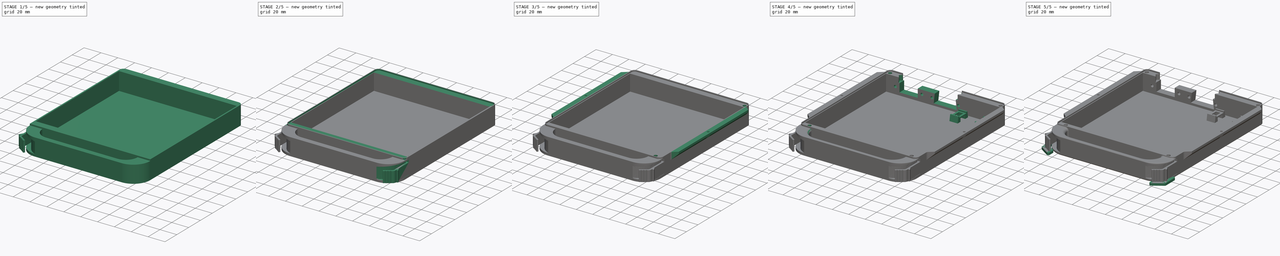
[diagram: build sequence overview — one tinted view per stage of 5, left to right]
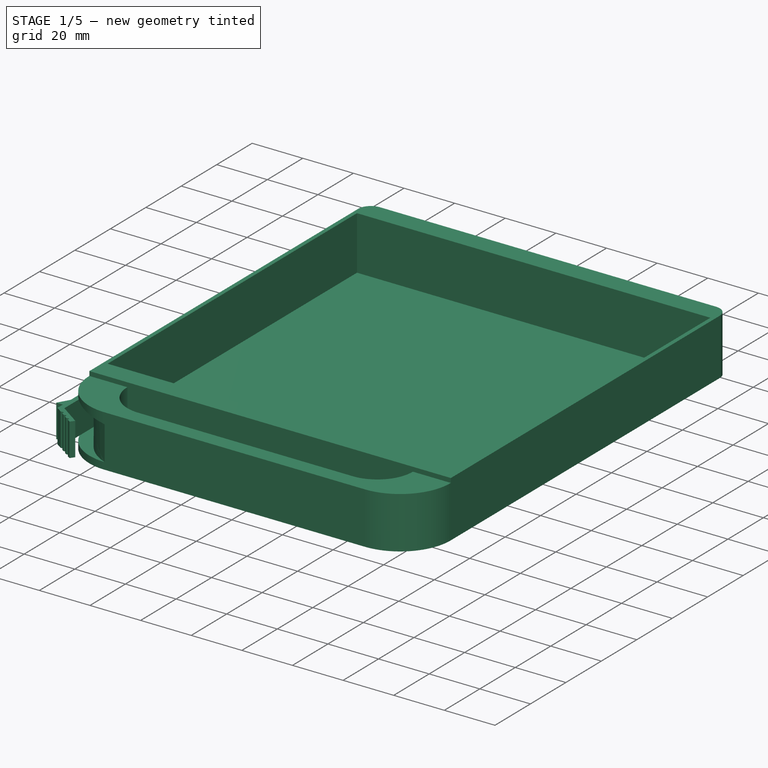
[diagram: stage 1 of 5 — iso view after this stage's code; geometry added in this stage tinted green]
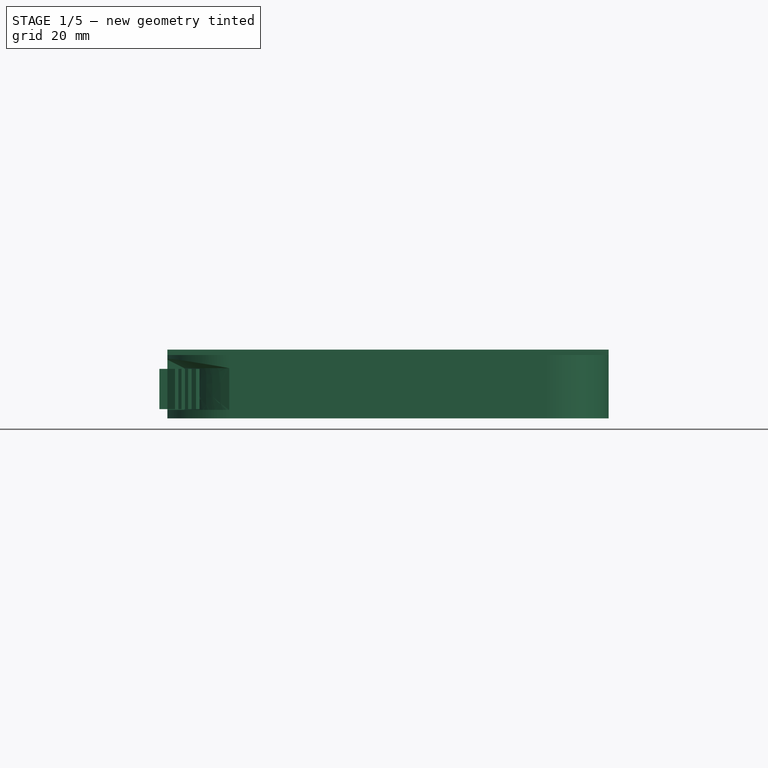
[diagram: stage 1 of 5 — front view after this stage's code; geometry added in this stage tinted green]
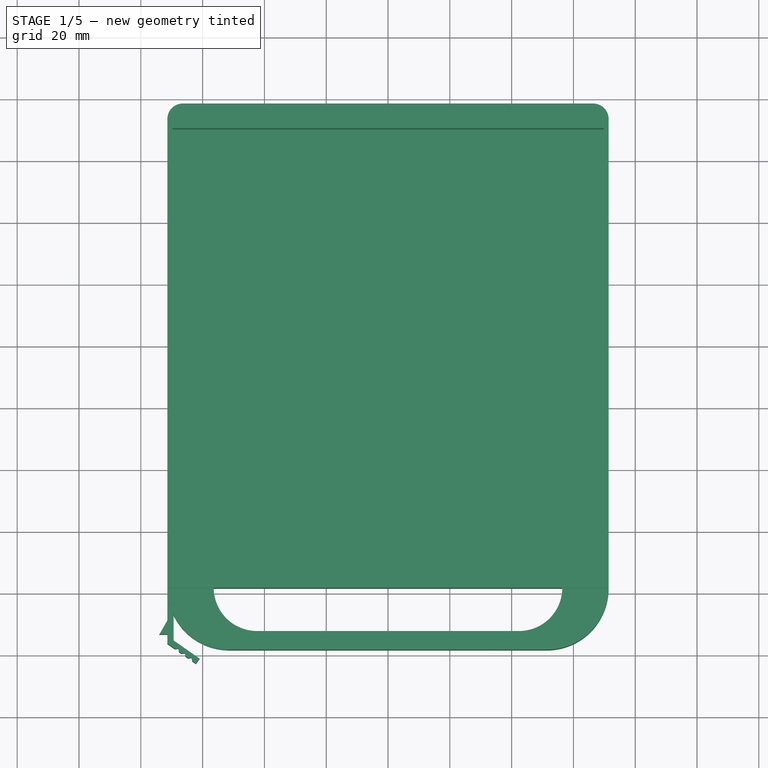
[diagram: stage 1 of 5 — top view after this stage's code; geometry added in this stage tinted green]
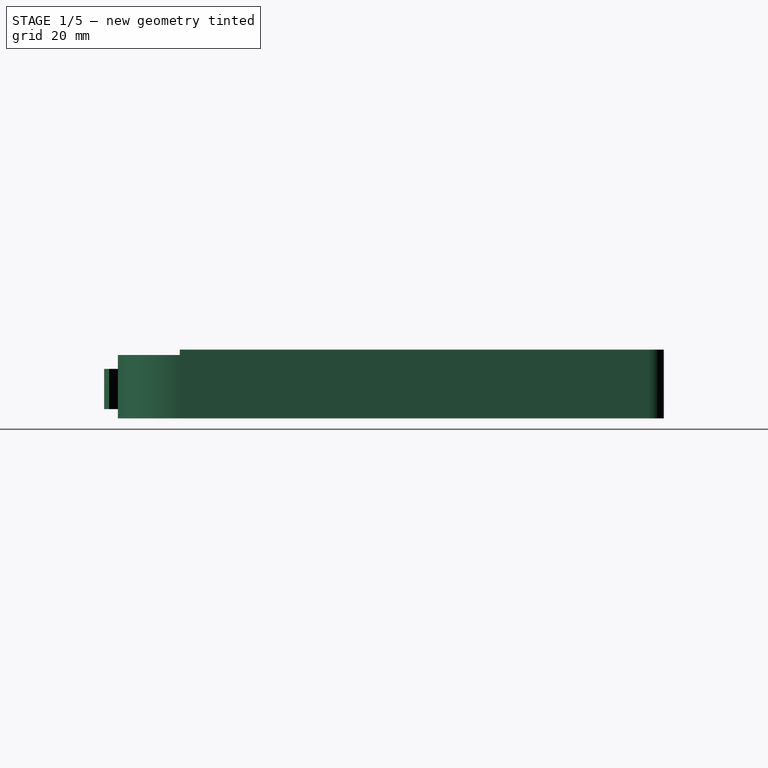
[diagram: stage 1 of 5 — right view after this stage's code; geometry added in this stage tinted green]
FCSTD DOCUMENT  (FreeCAD 2022.1021R26244 +5249 (Git))
Label: pack_top_v2
License: All rights reserved
LicenseURL: http://en.wikipedia.org/wiki/All_rights_reserved
objects: Sketcher::SketchObject×21, PartDesign::Pad×20, PartDesign::Fillet×12, PartDesign::Mirrored×5, PartDesign::Draft×2, PartDesign::Body×2, Spreadsheet::Sheet×1, PartDesign::SubtractivePipe×1, PartDesign::Chamfer×1, Part::SubShapeBinder×1, PartDesign::SubShapeBinder×1
note: 169 computed .brp shape members not serialized (recipe doc carries the construction recipe); baked Part::Feature solids carry a one-line shape summary decoded from their .brp

FEATURE [Spreadsheet::Sheet] Spreadsheet  label="Params"
  PythonMode = false
  ShowCells = 0
  TreeRank = 1
  cells = A1=width_inner; B1(width_inner)=139.6; A2=width_wall; B2(width_wall)=1.6; A3=width_wall_handle; B3(width_wall_handle)=6.4; A4=width_wall_dock; B4(width_wall_dock)=6.4; A5=height_bottom; B5(height_bottom)=0.75; A6=width_handle_grip; B6(width_handle_grip)=6; A7=length_inner; B7(length_inner)=140.7; A8=height_inner; B8(height_inner)=19.75; A9=width_handle; B9(width_handle)=20; A10=top_thickness; B10(top_thickness)=1; A11=radius_handle_outside; B11(radius_handle_outside)=15; A12=width_handle_attachment; B12(width_handle_attachment)=15; A13=radius_corner_roundover; B13(radius_corner_roundover)=5; A14=height_offset_latch; B14(height_offset_latch)=2.75; A15=width_latch_recess; B15(width_latch_recess)=5.5; A16=height_latch; B16(height_latch)=13; A17=layer_height; B17(layer_height)=0.25; A18=width_clasp; B18(width_clasp)=2; A19=height_lip; B19(height_lip)=1.5; A20=width_lip; B20(width_lip)=0.8; A21=angle_slide; B21(angle_slide)=45; A22=width_slide; B22(width_slide)=6; A23=height_slide_edge; B23(height_slide_edge)=2.5; A24=depth_brass_insert; B24(depth_brass_insert)=5.5; A25=length_con_bar; B25(length_con_bar)=72
FEATURE [Sketcher::SketchObject] Sketch
  ArcFitTolerance = 1e-06
  AttachmentSupport = -> [XY_Plane]
  ExternalBSplineMaxDegree = 5
  ExternalBSplineTolerance = 0.0001
  FullyConstrained = true
  InternalTolerance = 1e-06
  MakeInternals = false
  MapMode = 5
  Support = -> [XY_Plane]
  TreeRank = 12
  expr: Constraints[10] = <<Params>>.width_inner + 2 * <<Params>>.width_wall
  expr: Constraints[9] = <<Params>>.length_inner + 2 * <<Params>>.width_wall
  sketch-geometry (4):
    g0: LineSegment StartX=-71.4 StartY=71.95 StartZ=0 EndX=71.4 EndY=71.95 EndZ=0
    g1: LineSegment StartX=71.4 StartY=71.95 StartZ=0 EndX=71.4 EndY=-71.95 EndZ=0
    g2: LineSegment StartX=71.4 StartY=-71.95 StartZ=0 EndX=-71.4 EndY=-71.95 EndZ=0
    g3: LineSegment StartX=-71.4 StartY=-71.95 StartZ=0 EndX=-71.4 EndY=71.95 EndZ=0
  constraints (11):
    c: Coincident(g0,g1)
    c: Coincident(g1,g2)
    c: Coincident(g2,g3)
    c: Coincident(g3,g0)
    c: Horizontal(g0)
    c: Horizontal(g2)
    c: Vertical(g1)
    c: Vertical(g3)
    c: Symmetric(g1,g0,g-1)
    c: DistanceY(g3,g3) = 143.9
    c: DistanceX(g2,g2) = 142.8
FEATURE [PartDesign::Pad] Pad  label="outer box"
  AddSubType = 0
  AlongSketchNormal = false
  AutoTaperInnerAngle = true
  CheckUpToFaceLimits = true
  ClaimChildren = false
  Direction = (0,0,1)
  Fit = 0
  FitJoin = 0
  InnerFit = 0
  InnerFitJoin = 0
  Length = 22.25
  Length2 = 100
  Linearize = true
  NewSolid = false
  Profile = -> Sketch
  Suppress = false
  TaperInnerAngle = 0
  TaperInnerAngleRev = 0
  TreeRank = 13
  Type = 0
  _ProfileBasedVersion = 1
  expr: Length = <<Params>>.top_thickness + <<Params>>.height_inner + <<Params>>.height_lip
FEATURE [Sketcher::SketchObject] Sketch001
  ArcFitTolerance = 1e-06
  AttachmentSupport = -> [Pad]
  ExternalBSplineMaxDegree = 5
  ExternalBSplineTolerance = 0.0001
  ExternalGeometry = -> [Pad]
  FullyConstrained = true
  InternalTolerance = 1e-06
  MakeInternals = false
  MapMode = 5
  Placement = pos=(0,0,0) rot=(1,0,0;3.14159rad)
  Support = -> [Pad]
  TreeRank = 14
  expr: Constraints[16] = <<Params>>.width_wall_handle
  expr: Constraints[17] = <<Params>>.width_wall_dock
  expr: Constraints[18] = <<Params>>.width_inner + 2 * <<Params>>.width_wall
  expr: Constraints[19] = <<Params>>.width_inner + 2 * <<Params>>.width_wall
  sketch-geometry (8):
    g0: LineSegment StartX=-71.4 StartY=-71.95 StartZ=0 EndX=71.4 EndY=-71.95 EndZ=0
    g1: LineSegment StartX=71.4 StartY=-71.95 StartZ=0 EndX=71.4 EndY=-78.35 EndZ=0
    g2: LineSegment StartX=71.4 StartY=-78.35 StartZ=0 EndX=-71.4 EndY=-78.35 EndZ=0
    g3: LineSegment StartX=-71.4 StartY=-78.35 StartZ=0 EndX=-71.4 EndY=-71.95 EndZ=0
    g4: LineSegment StartX=-71.4 StartY=78.35 StartZ=0 EndX=71.4 EndY=78.35 EndZ=0
    g5: LineSegment StartX=71.4 StartY=78.35 StartZ=0 EndX=71.4 EndY=71.95 EndZ=0
    g6: LineSegment StartX=71.4 StartY=71.95 StartZ=0 EndX=-71.4 EndY=71.95 EndZ=0
    g7: LineSegment StartX=-71.4 StartY=71.95 StartZ=0 EndX=-71.4 EndY=78.35 EndZ=0
  constraints (22):
    c: Coincident(g0,g1)
    c: Coincident(g1,g2)
    c: Coincident(g2,g3)
    c: Coincident(g3,g0)
    c: Horizontal(g0)
    c: Horizontal(g2)
    c: Vertical(g1)
    c: Vertical(g3)
    c: Coincident(g4,g5)
    c: Coincident(g5,g6)
    c: Coincident(g6,g7)
    c: Coincident(g7,g4)
    c: Horizontal(g4)
    c: Horizontal(g6)
    c: Vertical(g5)
    c: Vertical(g7)
    c: DistanceY(g3,g3) = 6.4
    c: DistanceY(g5,g5) = 6.4
    c: DistanceX(g4,g4) = 142.8
    c: DistanceX(g2,g2) = 142.8
    c: Coincident(g0,g-4)
    c: Coincident(g6,g-3)
FEATURE [PartDesign::Pad] Pad001  label="thicker sides"
  AddSubType = 0
  AutoTaperInnerAngle = true
  BaseFeature = -> Pad
  CheckUpToFaceLimits = true
  ClaimChildren = false
  Direction = (0,0,-1)
  Fit = 0
  FitJoin = 0
  InnerFit = 0
  InnerFitJoin = 0
  Length = 10
  Length2 = 100
  Linearize = true
  NewSolid = false
  Profile = -> Sketch001
  Suppress = false
  TaperInnerAngle = 0
  TaperInnerAngleRev = 0
  TreeRank = 15
  Type = 3
  UpToFace = -> Pad [Face6]
  _ProfileBasedVersion = 1
FEATURE [Sketcher::SketchObject] Sketch002
  ArcFitTolerance = 1e-06
  AttachmentSupport = -> [Pad001]
  ExternalBSplineMaxDegree = 5
  ExternalBSplineTolerance = 0.0001
  FullyConstrained = true
  InternalTolerance = 1e-06
  MakeInternals = false
  MapMode = 5
  Placement = pos=(0,0,22.25) rot=(0,0,1;0rad)
  Support = -> [Pad001]
  TreeRank = 16
  expr: Constraints[8] = <<Params>>.width_inner
  expr: Constraints[9] = <<Params>>.length_inner
  sketch-geometry (4):
    g0: LineSegment StartX=-69.8 StartY=70.35 StartZ=0 EndX=69.8 EndY=70.35 EndZ=0
    g1: LineSegment StartX=69.8 StartY=70.35 StartZ=0 EndX=69.8 EndY=-70.35 EndZ=0
    g2: LineSegment StartX=69.8 StartY=-70.35 StartZ=0 EndX=-69.8 EndY=-70.35 EndZ=0
    g3: LineSegment StartX=-69.8 StartY=-70.35 StartZ=0 EndX=-69.8 EndY=70.35 EndZ=0
  constraints (11):
    c: Coincident(g0,g1)
    c: Coincident(g1,g2)
    c: Coincident(g2,g3)
    c: Coincident(g3,g0)
    c: Horizontal(g0)
    c: Horizontal(g2)
    c: Vertical(g1)
    c: Vertical(g3)
    c: DistanceX(g2,g2) = 139.6
    c: DistanceY(g1,g1) = 140.7
    c: Symmetric(g1,g0,g-1)
FEATURE [PartDesign::Pad] Pad002  label="inner box"
  AddSubType = 1
  AlongSketchNormal = false
  AutoTaperInnerAngle = true
  BaseFeature = -> Pad001
  CheckUpToFaceLimits = true
  ClaimChildren = false
  Direction = (0,0,1)
  Fit = 0
  FitJoin = 0
  InnerFit = 0
  InnerFitJoin = 0
  Length = 21.25
  Length2 = 100
  Linearize = true
  NewSolid = false
  Profile = -> Sketch002
  Reversed = true
  Suppress = false
  TaperInnerAngle = 0
  TaperInnerAngleRev = 0
  TreeRank = 17
  Type = 0
  _ProfileBasedVersion = 1
  expr: Length = <<Params>>.height_inner + <<Params>>.height_lip
FEATURE [Sketcher::SketchObject] Sketch003
  ArcFitTolerance = 1e-06
  AttachmentSupport = -> [Pad002]
  ExternalBSplineMaxDegree = 5
  ExternalBSplineTolerance = 0.0001
  ExternalGeometry = -> [Pad002]
  FullyConstrained = true
  InternalTolerance = 1e-06
  MakeInternals = false
  MapMode = 5
  Placement = pos=(0,0,0) rot=(1,0,0;3.14159rad)
  Support = -> [Pad002]
  TreeRank = 18
  expr: Constraints[16] = Spreadsheet.width_handle_grip
  expr: Constraints[17] = <<Params>>.width_handle
  expr: Constraints[18] = <<Params>>.width_handle_attachment
  expr: Constraints[19] = <<Params>>.width_handle_attachment
  sketch-geometry (8):
    g0: ArcOfCircle CenterX=-51.4 CenterY=78.35 CenterZ=0 NormalX=0 NormalY=0 NormalZ=1 AngleXU=0 Radius=20 StartAngle=1.5708 EndAngle=3.14159
    g1: ArcOfCircle CenterX=51.4 CenterY=78.35 CenterZ=0 NormalX=0 NormalY=0 NormalZ=1 AngleXU=0 Radius=20 StartAngle=0 EndAngle=1.5708
    g2: LineSegment StartX=-51.4 StartY=98.35 StartZ=0 EndX=51.4 EndY=98.35 EndZ=0
    g3: LineSegment StartX=-71.4 StartY=78.35 StartZ=0 EndX=-56.4 EndY=78.35 EndZ=0
    g4: LineSegment StartX=56.4 StartY=78.35 StartZ=0 EndX=71.4 EndY=78.35 EndZ=0
    g5: ArcOfCircle CenterX=-42.4 CenterY=78.35 CenterZ=0 NormalX=0 NormalY=0 NormalZ=1 AngleXU=0 Radius=14 StartAngle=1.5708 EndAngle=3.14159
    g6: ArcOfCircle CenterX=42.4 CenterY=78.35 CenterZ=0 NormalX=0 NormalY=0 NormalZ=1 AngleXU=0 Radius=14 StartAngle=0 EndAngle=1.5708
    g7: LineSegment StartX=-42.4 StartY=92.35 StartZ=0 EndX=42.4 EndY=92.35 EndZ=0
  constraints (26):
    c: Vertical(g0,g0)
    c: Horizontal(g0,g0)
    c: Horizontal(g1,g1)
    c: Vertical(g1,g1)
    c: Horizontal(g2)
    c: Coincident(g0,g2)
    c: Coincident(g1,g2)
    c: Horizontal(g3)
    c: Horizontal(g4)
    c: Coincident(g3,g0)
    c: Coincident(g4,g1)
    c: Coincident(g5,g3)
    c: Coincident(g6,g4)
    c: Horizontal(g7)
    c: Coincident(g7,g5)
    c: Coincident(g7,g6)
    c: Distance(g5,g2) = 6
    c: Distance(g3,g2) = 20
    c: DistanceX(g3,g3) = 15
    c: DistanceX(g4,g4) = 15
    c: Coincident(g1,g-3)
    c: Vertical(g6,g6)
    c: Horizontal(g4,g6)
    c: Horizontal(g5,g3)
    c: Vertical(g5,g5)
    c: Coincident(g0,g-4)
FEATURE [PartDesign::Pad] Pad003  label="handle"
  AddSubType = 0
  AlongSketchNormal = false
  AutoTaperInnerAngle = true
  BaseFeature = -> Pad002
  CheckUpToFaceLimits = true
  ClaimChildren = false
  Direction = (0,0,-1)
  Fit = 0
  FitJoin = 0
  InnerFit = 0
  InnerFitJoin = 0
  Length = 20.5
  Length2 = 100
  Linearize = true
  NewSolid = false
  Profile = -> Sketch003
  Reversed = true
  Suppress = false
  TaperInnerAngle = 0
  TaperInnerAngleRev = 0
  TreeRank = 19
  Type = 0
  _ProfileBasedVersion = 1
  expr: Length = <<Params>>.height_inner + <<Params>>.height_bottom
FEATURE [PartDesign::Fillet] Fillet  label="box corner roundover"
  AddSubType = 0
  Base = -> Pad003 [Edge24,Edge6]
  BaseFeature = -> Pad003
  NewSolid = false
  Radius = 5
  SupportTransform = false
  Suppress = false
  TreeRank = 20
  expr: Radius = <<Params>>.radius_corner_roundover
FEATURE [Sketcher::SketchObject] Sketch004
  ArcFitTolerance = 1e-06
  AttachmentOffset = pos=(0,0,-2.75) rot=(0,0,1;0rad)
  AttachmentSupport = -> [Fillet]
  ExternalBSplineMaxDegree = 5
  ExternalBSplineTolerance = 0.0001
  ExternalGeometry = -> [Fillet]
  FullyConstrained = true
  InternalTolerance = 1e-06
  MakeInternals = false
  MapMode = 5
  Placement = pos=(0,0,2.75) rot=(1,0,0;3.14159rad)
  Support = -> [Fillet]
  TreeRank = 21
  expr: AttachmentOffset.Base.z = -<<Params>>.height_offset_latch
  expr: Constraints[5] = <<Params>>.width_latch_recess
  sketch-geometry (9):
    g0: LineSegment StartX=-71.4 StartY=71.95 StartZ=0 EndX=-65.9 EndY=71.95 EndZ=0
    g1: LineSegment StartX=-71.4 StartY=98.35 StartZ=0 EndX=-71.4 EndY=71.95 EndZ=0
    g2: LineSegment StartX=-71.4 StartY=98.35 StartZ=0 EndX=-51.4 EndY=98.35 EndZ=0
    g3: Circle [constr] CenterX=-51.4 CenterY=98.35 CenterZ=0 NormalX=0 NormalY=0 NormalZ=1 AngleXU=0 Radius=1
    g4: Circle [constr] CenterX=-65.9 CenterY=92.35 CenterZ=0 NormalX=0 NormalY=0 NormalZ=1 AngleXU=0 Radius=1
    g5: Circle [constr] CenterX=-65.9 CenterY=71.95 CenterZ=0 NormalX=0 NormalY=0 NormalZ=1 AngleXU=0 Radius=1
    g6: BSplineCurve PolesCount=3 KnotsCount=2 Degree=2 IsPeriodic=0
    g7: GeomPoint [constr] X=-51.4 Y=98.35 Z=0
    g8: GeomPoint [constr] X=-65.9 Y=71.95 Z=0
  constraints (20):
    c: Horizontal(g0)
    c: Vertical(g1)
    c: Horizontal(g2)
    c: Coincident(g1,g2)
    c: Coincident(g0,g1)
    c: DistanceX(g0,g0) = 5.5
    c: Coincident(g0,g-4)
    c: Coincident(g6,g2)
    c: Weight(g3) = 1
    c: Equal(g3,g4)
    c: Equal(g3,g5)
    c: Coincident(g6,g0)
    c: InternalAlignment(g3,g6)
    c: InternalAlignment(g4,g6)
    c: InternalAlignment(g5,g6)
    c: InternalAlignment(g7,g6)
    c: InternalAlignment(g8,g6)
    c: Vertical(g0,g4)
    c: Coincident(g2,g-3)
    c: Distance(g4,g2) = 6
FEATURE [PartDesign::Pad] Pad004  label="latch recess"
  AddSubType = 1
  AlongSketchNormal = false
  AutoTaperInnerAngle = true
  BaseFeature = -> Fillet
  CheckUpToFaceLimits = true
  ClaimChildren = false
  Direction = (0,0,-1)
  Fit = 0
  FitJoin = 0
  InnerFit = 0
  InnerFitJoin = 0
  Length = 13.5
  Length2 = 100
  Linearize = true
  NewSolid = false
  Profile = -> Sketch004
  Reversed = true
  Suppress = false
  TaperInnerAngle = 0
  TaperInnerAngleRev = 0
  TreeRank = 22
  Type = 0
  _ProfileBasedVersion = 1
  expr: Length = <<Params>>.height_latch + 2 * 0.25
FEATURE [Sketcher::SketchObject] Sketch005
  ArcFitTolerance = 1e-06
  AttachmentSupport = -> [Pad004]
  ExternalBSplineMaxDegree = 5
  ExternalBSplineTolerance = 0.0001
  ExternalGeometry = -> [Pad004]
  FullyConstrained = true
  InternalTolerance = 1e-06
  MakeInternals = false
  MapMode = 5
  Placement = pos=(0,-71.95,0) rot=(1,0,0;1.5708rad)
  Support = -> [Pad004]
  TreeRank = 23
  sketch-geometry (6):
    g0: LineSegment StartX=-71.4 StartY=16.25 StartZ=0 EndX=-65.9 EndY=16.25 EndZ=0
    g1: LineSegment StartX=-71.4 StartY=19 StartZ=0 EndX=-65.9 EndY=16.25 EndZ=0
    g2: LineSegment StartX=-72.4 StartY=16.25 StartZ=0 EndX=-71.4 EndY=16.25 EndZ=0
    g3: LineSegment StartX=-72.4 StartY=19.43 StartZ=0 EndX=-72.4 EndY=16.25 EndZ=0
    g4: LineSegment StartX=-72.4 StartY=19.43 StartZ=0 EndX=-72.4 EndY=19.5 EndZ=0
    g5: LineSegment StartX=-72.4 StartY=19.5 StartZ=0 EndX=-71.4 EndY=19 EndZ=0
  constraints (17):
    c: Horizontal(g2)
    c: Vertical(g3)
    c: Coincident(g2,g3)
    c: Coincident(g2,g0)
    c: Vertical(g1,g0)
    c: DistanceX(g2,g2) = 1
    c: Vertical(g4)
    c: Coincident(g5,g4)
    c: Parallel(g5,g1)
    c: DistanceY(g3,g3) = 3.18
    c: Coincident(g5,g1)
    c: Horizontal(g0)
    c: Coincident(g1,g0)
    c: Coincident(g3,g4)
    c: Coincident(g0,g-3)
    c: Vertical(g1,g-4)
    c: DistanceY(g1,g-4) = 1.5
FEATURE [PartDesign::SubtractivePipe] Pipe  label="latch recess overhang"
  AddSubType = 1
  AuxilleryCurvelinear = true
  AuxillerySpineTangent = false
  BaseFeature = -> Pad004
  Binormal = (0,0,0)
  ClaimChildren = false
  Fit = 0
  FitJoin = 0
  InnerFit = 0
  InnerFitJoin = 0
  Linearize = true
  Mode = 0
  NewSolid = false
  Profile = -> Sketch005
  Spine = -> Pad004 [Edge83]
  SpineTangent = false
  Suppress = false
  Transformation = 0
  Transition = 1
  TreeRank = 24
  _ProfileBasedVersion = 2
FEATURE [Sketcher::SketchObject] Sketch006
  ArcFitTolerance = 1e-06
  AttachmentOffset = pos=(0,0,0.25) rot=(0,0,1;0rad)
  AttachmentSupport = -> [Pipe]
  ExternalBSplineMaxDegree = 5
  ExternalBSplineTolerance = 0.0001
  ExternalGeometry = -> [Pipe]
  FullyConstrained = true
  InternalTolerance = 1e-06
  MakeInternals = false
  MapMode = 5
  Placement = pos=(0,0,3) rot=(0,0,1;0rad)
  Support = -> [Pipe]
  TreeRank = 25
  expr: AttachmentOffset.Base.z = <<Params>>.layer_height
  expr: Constraints[18] = <<Params>>.width_clasp
  expr: Constraints[19] = 90 + 35
  expr: Constraints[21] = <<Params>>.width_clasp
  expr: Constraints[32] = <<Params>>.width_clasp
  expr: Constraints[33] = <<Params>>.width_clasp
  expr: Constraints[34] = <<Params>>.width_clasp
  expr: Constraints[45] = <<Params>>.width_clasp
  sketch-geometry (18):
    g0: LineSegment StartX=-71.4 StartY=-71.95 StartZ=0 EndX=-71.4 EndY=-88.85 EndZ=0
    g1: LineSegment StartX=-71.4 StartY=-71.95 StartZ=0 EndX=-69.4 EndY=-71.95 EndZ=0
    g2: LineSegment StartX=-69.4 StartY=-71.95 StartZ=0 EndX=-69.4 EndY=-95.3089 EndZ=0
    g3: LineSegment StartX=-69.4 StartY=-95.3089 StartZ=0 EndX=-60.9964 EndY=-101.193 EndZ=0
    g4: LineSegment StartX=-60.9964 StartY=-101.193 StartZ=0 EndX=-62.1436 EndY=-102.831 EndZ=0
    g5: LineSegment StartX=-62.1436 StartY=-102.831 StartZ=0 EndX=-63.3723 EndY=-101.971 EndZ=0
    g6: LineSegment StartX=-63.3723 StartY=-101.971 StartZ=0 EndX=-63.5688 EndY=-100.857 EndZ=0
    g7: LineSegment StartX=-63.5688 StartY=-100.857 StartZ=0 EndX=-64.683 EndY=-101.053 EndZ=0
    g8: LineSegment StartX=-64.683 StartY=-101.053 StartZ=0 EndX=-65.5021 EndY=-100.48 EndZ=0
    g9: LineSegment StartX=-65.5021 StartY=-100.48 StartZ=0 EndX=-65.6986 EndY=-99.3656 EndZ=0
    g10: LineSegment StartX=-65.6986 StartY=-99.3656 StartZ=0 EndX=-66.8127 EndY=-99.562 EndZ=0
    g11: LineSegment StartX=-66.8127 StartY=-99.562 StartZ=0 EndX=-67.6319 EndY=-98.9885 EndZ=0
    g12: LineSegment StartX=-67.6319 StartY=-98.9885 StartZ=0 EndX=-67.8284 EndY=-97.8743 EndZ=0
    g13: LineSegment StartX=-67.8284 StartY=-97.8743 StartZ=0 EndX=-68.9425 EndY=-98.0707 EndZ=0
    g14: LineSegment StartX=-68.9425 StartY=-98.0707 StartZ=0 EndX=-71.4 EndY=-96.35 EndZ=0
    g15: LineSegment StartX=-71.4 StartY=-93.35 StartZ=0 EndX=-74 EndY=-93.35 EndZ=0
    g16: LineSegment StartX=-74 StartY=-93.35 StartZ=0 EndX=-71.4 EndY=-88.85 EndZ=0
    g17: LineSegment StartX=-71.4 StartY=-93.35 StartZ=0 EndX=-71.4 EndY=-96.35 EndZ=0
  constraints (53):
    c: Vertical(g0)
    c: Coincident(g1,g0)
    c: Horizontal(g1)
    c: Coincident(g2,g1)
    c: Vertical(g2)
    c: Coincident(g3,g2)
    c: Coincident(g4,g3)
    c: Coincident(g5,g4)
    c: Coincident(g6,g5)
    c: Coincident(g7,g6)
    c: Coincident(g8,g7)
    c: Coincident(g9,g8)
    c: Coincident(g10,g9)
    c: Coincident(g11,g10)
    c: Coincident(g12,g11)
    c: Coincident(g13,g12)
    c: Coincident(g14,g13)
    c: Coincident(g14,g17)
    c: DistanceX(g1,g1) = 2
    c: Angle(g3,g2) = 2.18166
    c: Perpendicular(g3,g4)
    c: Distance(g4) = 2
    c: Parallel(g5,g3)
    c: Parallel(g8,g3)
    c: Parallel(g11,g3)
    c: Parallel(g14,g3)
    c: Angle(g13,g12) = 1.5708
    c: Angle(g10,g9) = 1.5708
    c: Angle(g7,g6) = 1.5708
    c: Equal(g7,g6)
    c: Equal(g10,g9)
    c: Equal(g13,g12)
    c: Distance(g13,g3) = 2
    c: Distance(g11,g3) = 2
    c: Distance(g8,g3) = 2
    c: Distance(g12,g3) = 1.2
    c: Distance(g9,g3) = 1.2
    c: Distance(g6,g3) = 1.2
    c: Distance(g11) = 1
    c: Distance(g8) = 1
    c: Distance(g5) = 1.5
    c: Horizontal(g15)
    c: Coincident(g16,g15)
    c: Coincident(g0,g16)
    c: Coincident(g17,g15)
    c: Distance(g15,g2) = 2
    c: DistanceY(g0,g0) = 16.9
    c: DistanceX(g15,g15) = 2.6
    c: Distance(g0,g15) = 4.5
    c: DistanceY(g17,g17) = 3
    c: Vertical(g17)
    c: Distance(g14) = 3
    c: Coincident(g0,g-3)
FEATURE [PartDesign::Pad] Pad005  label="latch"
  AddSubType = 0
  AlongSketchNormal = false
  AutoTaperInnerAngle = true
  BaseFeature = -> Pipe
  CheckUpToFaceLimits = true
  ClaimChildren = false
  Direction = (0,0,1)
  Fit = 0
  FitJoin = 0
  InnerFit = 0
  InnerFitJoin = 0
  Length = 13
  Length2 = 100
  Linearize = true
  NewSolid = false
  Profile = -> Sketch006
  Suppress = false
  TaperInnerAngle = 0
  TaperInnerAngleRev = 0
  TreeRank = 26
  Type = 0
  _ProfileBasedVersion = 1
  expr: Length = <<Params>>.height_latch
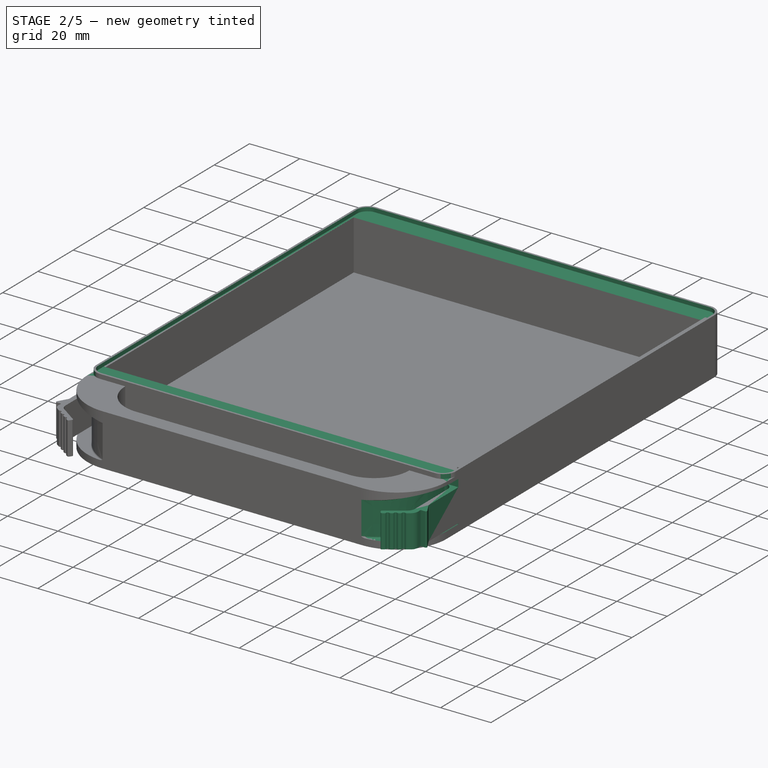
[diagram: stage 2 of 5 — iso view after this stage's code; geometry added in this stage tinted green]
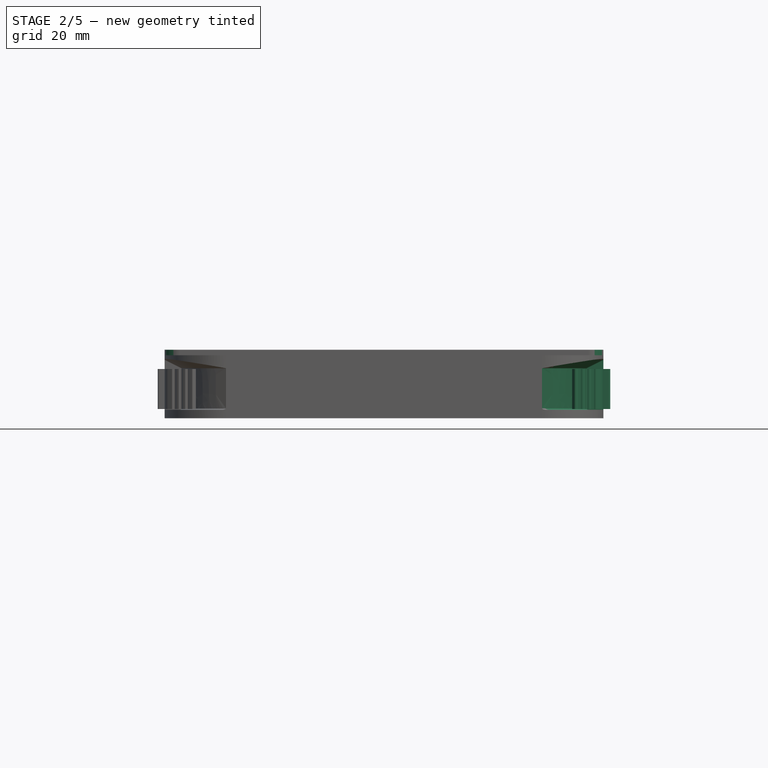
[diagram: stage 2 of 5 — front view after this stage's code; geometry added in this stage tinted green]
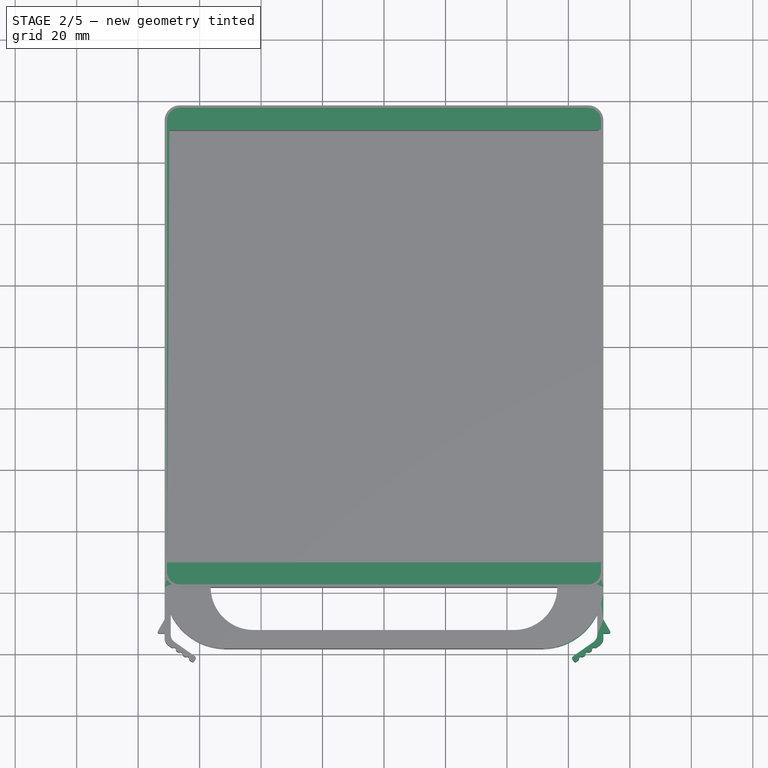
[diagram: stage 2 of 5 — top view after this stage's code; geometry added in this stage tinted green]
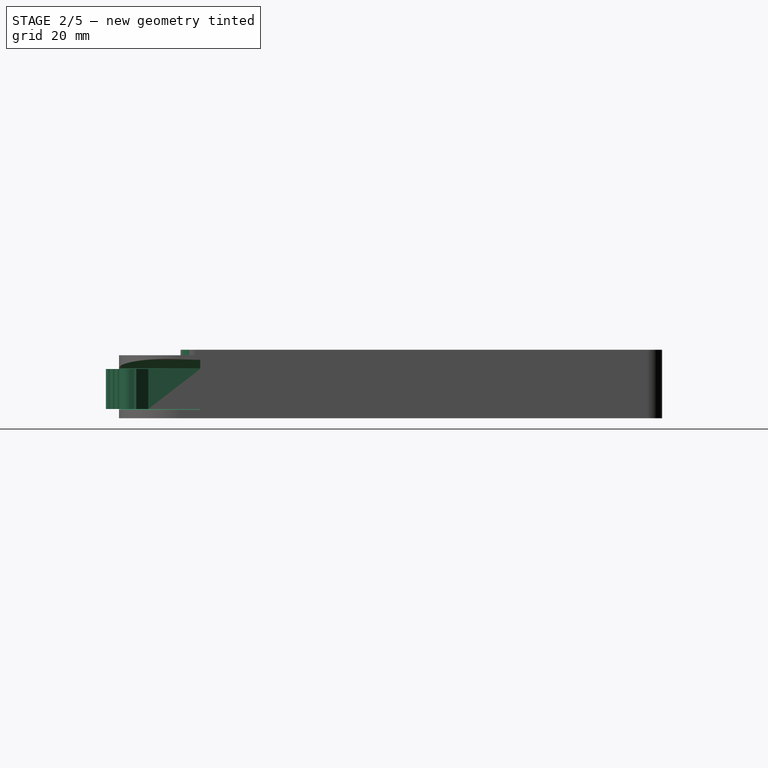
[diagram: stage 2 of 5 — right view after this stage's code; geometry added in this stage tinted green]
FEATURE [PartDesign::Fillet] Fillet001  label="round lath corner"
  AddSubType = 0
  Base = -> Pad005 [Edge110,Edge132]
  BaseFeature = -> Pad005
  NewSolid = false
  Radius = 3
  SupportTransform = false
  Suppress = false
  TreeRank = 27
FEATURE [PartDesign::Fillet] Fillet002  label="latch base"
  AddSubType = 0
  Base = -> Fillet001 [Edge42]
  BaseFeature = -> Fillet001
  NewSolid = false
  Radius = 3.2
  SupportTransform = false
  Suppress = false
  TreeRank = 28
  expr: Radius = <<Params>>.width_latch_recess - <<Params>>.width_clasp - 0.3
FEATURE [PartDesign::Fillet] Fillet003  label="soften clasp ridges"
  AddSubType = 0
  Base = -> Fillet002 [Edge39,Edge38,Edge48,Edge60,Edge66,Edge63,Edge68,Edge64,Edge56,Edge52,Edge77,Edge46]
  BaseFeature = -> Fillet002
  NewSolid = false
  Radius = 0.5
  SupportTransform = false
  Suppress = false
  TreeRank = 29
FEATURE [PartDesign::Mirrored] Mirrored
  AddSubType = 0
  BaseFeature = -> Fillet003
  CopyShape = false
  MirrorPlane = -> YZ_Plane
  NewSolid = false
  OriginalSubs = -> [Pad004,Pad005,Pipe,Fillet001,Fillet002,Fillet003]
  Originals = -> [Pad004,Pad005,Pipe,Fillet001,Fillet002,Fillet003]
  ParallelTransform = true
  SubTransform = true
  Suppress = false
  TreeRank = 30
  _Version = 3
FEATURE [PartDesign::Fillet] Fillet004
  AddSubType = 0
  Base = -> Mirrored [Edge125,Edge162]
  BaseFeature = -> Mirrored
  NewSolid = false
  Radius = 5
  SupportTransform = false
  Suppress = false
  TreeRank = 31
  expr: Radius = <<Params>>.radius_corner_roundover
FEATURE [Sketcher::SketchObject] Sketch007
  ArcFitTolerance = 1e-06
  AttachmentSupport = -> [Fillet004]
  ExternalBSplineMaxDegree = 5
  ExternalBSplineTolerance = 0.0001
  ExternalGeometry = -> [Fillet004]
  FullyConstrained = true
  InternalTolerance = 1e-06
  MakeInternals = false
  MapMode = 5
  Placement = pos=(0,0,22.25) rot=(0,0,1;0rad)
  Support = -> [Fillet004]
  TreeRank = 32
  expr: Constraints[15] = <<Params>>.width_lip
  expr: Constraints[19] = <<Params>>.width_lip
  sketch-geometry (6):
    g0: ArcOfCircle CenterX=-66.4 CenterY=-73.35 CenterZ=0 NormalX=0 NormalY=0 NormalZ=1 AngleXU=0 Radius=4.2 StartAngle=3.14159 EndAngle=4.71239
    g1: LineSegment StartX=-66.4 StartY=-77.55 StartZ=0 EndX=66.4 EndY=-77.55 EndZ=0
    g2: LineSegment StartX=-70.6 StartY=-73.35 StartZ=0 EndX=-70.6 EndY=-70.35 EndZ=0
    g3: LineSegment StartX=-70.6 StartY=-70.35 StartZ=0 EndX=70.6 EndY=-70.35 EndZ=0
    g4: ArcOfCircle CenterX=66.4 CenterY=-73.35 CenterZ=0 NormalX=0 NormalY=0 NormalZ=1 AngleXU=0 Radius=4.2 StartAngle=4.71239 EndAngle=6.28319
    g5: LineSegment StartX=70.6 StartY=-70.35 StartZ=0 EndX=70.6 EndY=-73.35 EndZ=0
  constraints (20):
    c: Vertical(g0,g0)
    c: Horizontal(g0,g0)
    c: Horizontal(g1)
    c: Vertical(g2)
    c: Horizontal(g3)
    c: Coincident(g2,g0)
    c: Coincident(g3,g2)
    c: Coincident(g1,g0)
    c: Horizontal(g4,g4)
    c: Vertical(g4,g4)
    c: Coincident(g4,g1)
    c: Vertical(g5)
    c: Coincident(g5,g4)
    c: Coincident(g5,g3)
    c: Vertical(g0,g-3)
    c: DistanceY(g-3,g0) = 0.8
    c: Horizontal(g0,g-4)
    c: Horizontal(g2,g-5)
    c: Horizontal(g4,g-6)
    c: DistanceX(g4,g-6) = 0.8
FEATURE [PartDesign::Pad] Pad006  label="lip handle side"
  AddSubType = 1
  AlongSketchNormal = false
  AutoTaperInnerAngle = true
  BaseFeature = -> Fillet004
  CheckUpToFaceLimits = true
  ClaimChildren = false
  Direction = (0,0,1)
  Fit = 0
  FitJoin = 0
  InnerFit = 0
  InnerFitJoin = 0
  Length = 1.5
  Length2 = 100
  Linearize = true
  NewSolid = false
  Profile = -> Sketch007
  Reversed = true
  Suppress = false
  TaperInnerAngle = 0
  TaperInnerAngleRev = 0
  TreeRank = 33
  Type = 0
  _ProfileBasedVersion = 1
  expr: Length = <<Params>>.height_lip
FEATURE [Sketcher::SketchObject] Sketch008
  ArcFitTolerance = 1e-06
  AttachmentSupport = -> [Pad006]
  ExternalBSplineMaxDegree = 5
  ExternalBSplineTolerance = 0.0001
  ExternalGeometry = -> [Pad006]
  FullyConstrained = true
  InternalTolerance = 1e-06
  MakeInternals = false
  MapMode = 5
  Placement = pos=(0,0,22.25) rot=(0,0,1;0rad)
  Support = -> [Pad006]
  TreeRank = 34
  expr: Constraints[17] = <<Params>>.width_lip
  sketch-geometry (6):
    g0: ArcOfCircle CenterX=-66.4 CenterY=73.35 CenterZ=0 NormalX=0 NormalY=0 NormalZ=1 AngleXU=0 Radius=4.2 StartAngle=1.5708 EndAngle=3.14159
    g1: ArcOfCircle CenterX=66.4 CenterY=73.35 CenterZ=0 NormalX=0 NormalY=0 NormalZ=1 AngleXU=0 Radius=4.2 StartAngle=0 EndAngle=1.5708
    g2: LineSegment StartX=-70.6 StartY=73.35 StartZ=0 EndX=-70.6 EndY=70.35 EndZ=0
    g3: LineSegment StartX=70.6 StartY=73.35 StartZ=0 EndX=70.6 EndY=70.35 EndZ=0
    g4: LineSegment StartX=-66.4 StartY=77.55 StartZ=0 EndX=66.4 EndY=77.55 EndZ=0
    g5: LineSegment StartX=-70.6 StartY=70.35 StartZ=0 EndX=70.6 EndY=70.35 EndZ=0
  constraints (20):
    c: Vertical(g0,g0)
    c: Horizontal(g0,g0)
    c: Horizontal(g0,g1)
    c: Horizontal(g1,g1)
    c: Vertical(g1,g1)
    c: Horizontal(g4)
    c: Horizontal(g5)
    c: Vertical(g2)
    c: Vertical(g3)
    c: Coincident(g2,g0)
    c: Coincident(g3,g1)
    c: Coincident(g4,g1)
    c: Coincident(g0,g4)
    c: Coincident(g5,g2)
    c: Coincident(g3,g5)
    c: Vertical(g0,g-4)
    c: Horizontal(g0,g-3)
    c: DistanceY(g0,g-4) = 0.8
    c: Horizontal(g-5,g2)
    c: Vertical(g1,g-6)
FEATURE [PartDesign::Pad] Pad007  label="lip dock side"
  AddSubType = 1
  AlongSketchNormal = false
  AutoTaperInnerAngle = true
  BaseFeature = -> Pad006
  CheckUpToFaceLimits = true
  ClaimChildren = false
  Direction = (0,0,1)
  Fit = 0
  FitJoin = 0
  InnerFit = 0
  InnerFitJoin = 0
  Length = 1.5
  Length2 = 100
  Linearize = true
  NewSolid = false
  Profile = -> Sketch008
  Reversed = true
  Suppress = false
  TaperInnerAngle = 0
  TaperInnerAngleRev = 0
  TreeRank = 35
  Type = 0
  _ProfileBasedVersion = 1
  expr: Length = <<Params>>.height_lip
FEATURE [Sketcher::SketchObject] Sketch009
  ArcFitTolerance = 1e-06
  AttachmentSupport = -> [Pad007]
  ExternalBSplineMaxDegree = 5
  ExternalBSplineTolerance = 0.0001
  ExternalGeometry = -> [Pad007]
  FullyConstrained = true
  InternalTolerance = 1e-06
  MakeInternals = false
  MapMode = 5
  Placement = pos=(0,0,22.25) rot=(0,0,1;0rad)
  Support = -> [Pad007]
  TreeRank = 36
  expr: Constraints[7] = <<Params>>.width_lip
  sketch-geometry (4):
    g0: LineSegment StartX=-70.6 StartY=70.35 StartZ=0 EndX=-69.8 EndY=70.35 EndZ=0
    g1: LineSegment StartX=-69.8 StartY=70.35 StartZ=0 EndX=-69.8 EndY=-70.35 EndZ=0
    g2: LineSegment StartX=-69.8 StartY=-70.35 StartZ=0 EndX=-70.6 EndY=-70.35 EndZ=0
    g3: LineSegment StartX=-70.6 StartY=-70.35 StartZ=0 EndX=-70.6 EndY=70.35 EndZ=0
  constraints (10):
    c: Coincident(g0,g1)
    c: Coincident(g1,g2)
    c: Coincident(g2,g3)
    c: Coincident(g3,g0)
    c: Horizontal(g0)
    c: Horizontal(g2)
    c: Vertical(g3)
    c: DistanceX(g0,g0) = 0.8
    c: Coincident(g0,g-3)
    c: Coincident(g1,g-4)
FEATURE [PartDesign::Pad] Pad008  label="lip side A"
  AddSubType = 1
  AlongSketchNormal = false
  AutoTaperInnerAngle = true
  BaseFeature = -> Pad007
  CheckUpToFaceLimits = true
  ClaimChildren = false
  Direction = (0,0,1)
  Fit = 0
  FitJoin = 0
  InnerFit = 0
  InnerFitJoin = 0
  Length = 1.5
  Length2 = 100
  Linearize = true
  NewSolid = false
  Profile = -> Sketch009
  Reversed = true
  Suppress = false
  TaperInnerAngle = 0
  TaperInnerAngleRev = 0
  TreeRank = 37
  Type = 0
  _ProfileBasedVersion = 1
  expr: Length = <<Params>>.height_lip
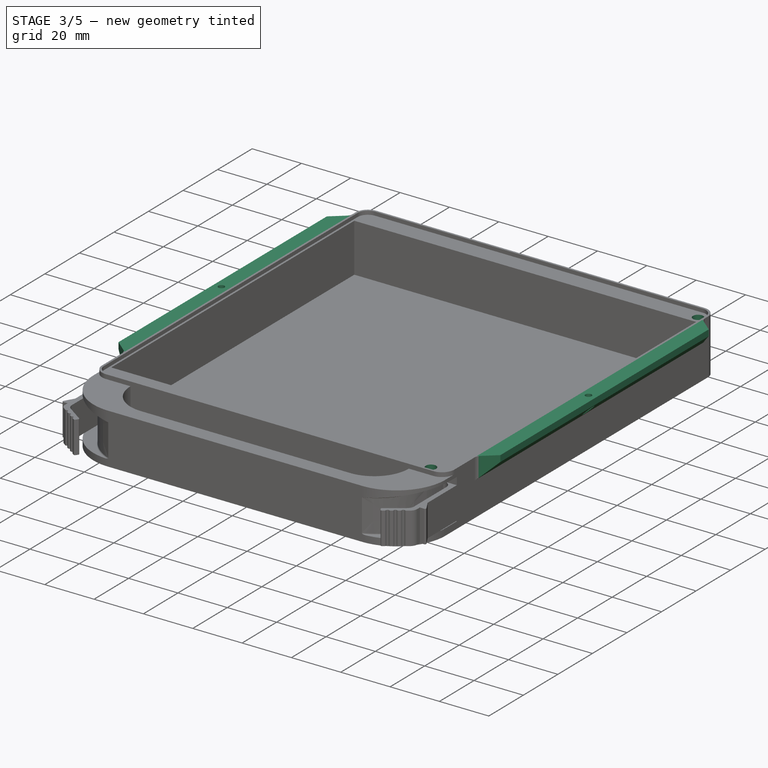
[diagram: stage 3 of 5 — iso view after this stage's code; geometry added in this stage tinted green]
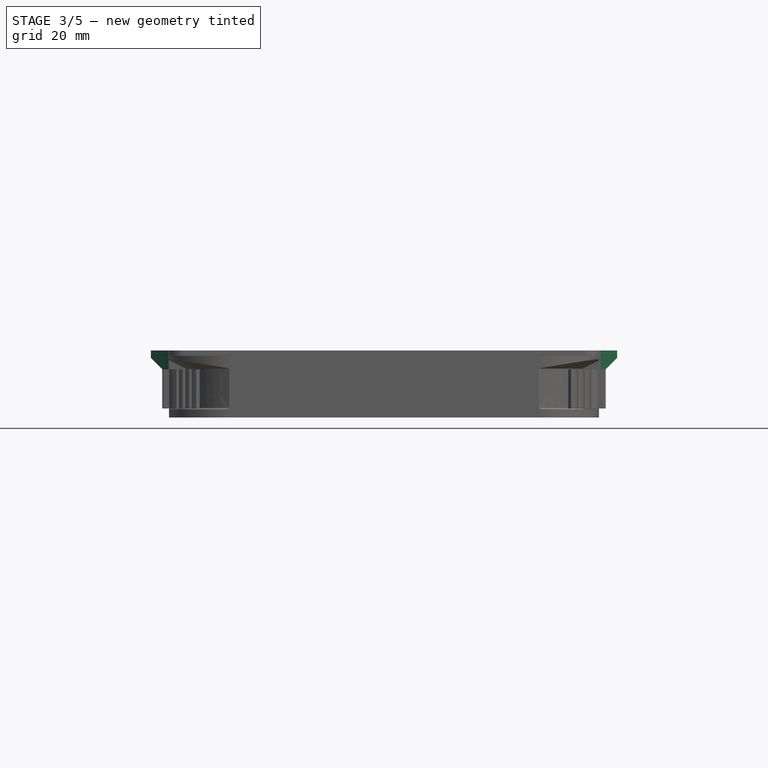
[diagram: stage 3 of 5 — front view after this stage's code; geometry added in this stage tinted green]
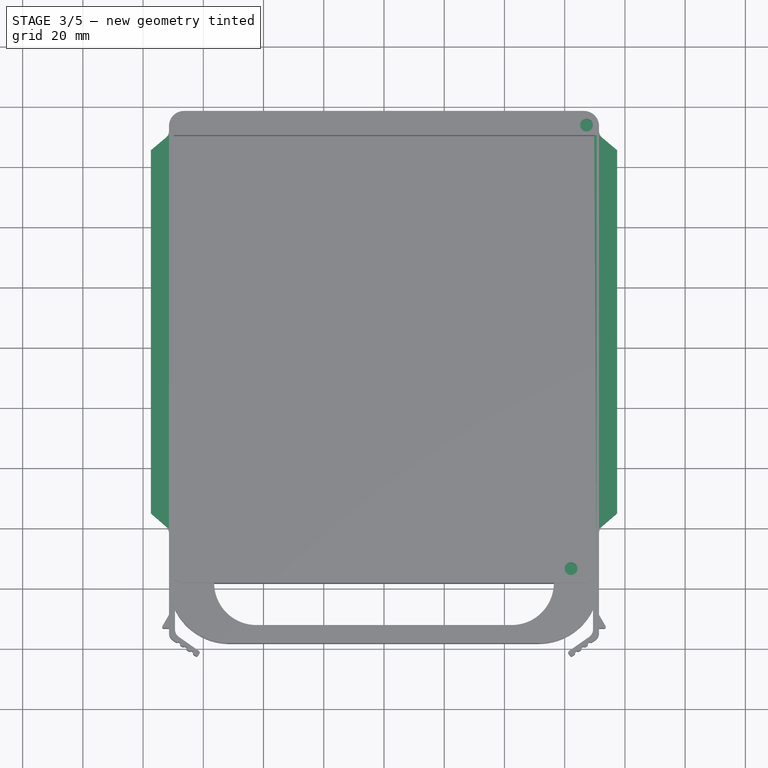
[diagram: stage 3 of 5 — top view after this stage's code; geometry added in this stage tinted green]
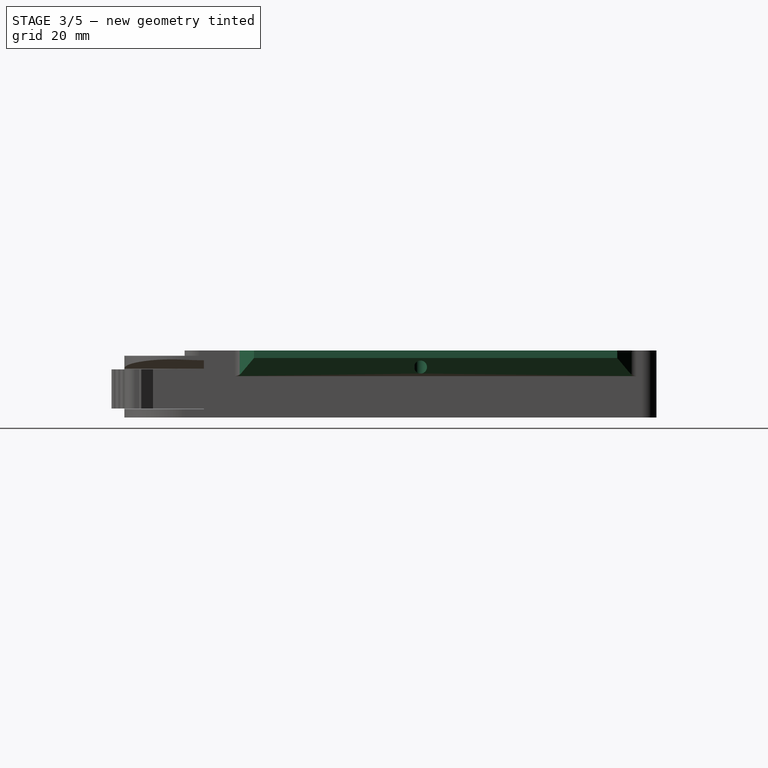
[diagram: stage 3 of 5 — right view after this stage's code; geometry added in this stage tinted green]
FEATURE [PartDesign::Mirrored] Mirrored001  label="lip mirror to side B"
  AddSubType = 0
  BaseFeature = -> Pad008
  CopyShape = false
  MirrorPlane = -> YZ_Plane
  NewSolid = false
  OriginalSubs = -> [Pad008]
  Originals = -> [Pad008]
  ParallelTransform = true
  SubTransform = true
  Suppress = false
  TreeRank = 38
  _Version = 3
FEATURE [Sketcher::SketchObject] Sketch010
  ArcFitTolerance = 1e-06
  AttachmentSupport = -> [Mirrored001]
  ExternalBSplineMaxDegree = 5
  ExternalBSplineTolerance = 0.0001
  ExternalGeometry = -> [Mirrored001]
  FullyConstrained = true
  InternalTolerance = 1e-06
  MakeInternals = false
  MapMode = 5
  Placement = pos=(0,70.35,0) rot=(1,0,0;1.5708rad)
  Support = -> [Mirrored001]
  TreeRank = 39
  expr: Constraints[7] = <<Params>>.width_slide
  expr: Constraints[8] = <<Params>>.height_slide_edge
  expr: Constraints[9] = <<Params>>.angle_slide
  sketch-geometry (4):
    g0: LineSegment StartX=77.4 StartY=22.25 StartZ=0 EndX=71.4 EndY=22.25 EndZ=0
    g1: LineSegment StartX=71.4 StartY=22.25 StartZ=0 EndX=71.4 EndY=13.75 EndZ=0
    g2: LineSegment StartX=77.4 StartY=22.25 StartZ=0 EndX=77.4 EndY=19.75 EndZ=0
    g3: LineSegment StartX=77.4 StartY=19.75 StartZ=0 EndX=71.4 EndY=13.75 EndZ=0
  constraints (11):
    c: Horizontal(g0)
    c: Coincident(g1,g0)
    c: Vertical(g1)
    c: Coincident(g2,g0)
    c: Vertical(g2)
    c: Coincident(g3,g2)
    c: Coincident(g3,g1)
    c: DistanceX(g0,g0) = 6
    c: DistanceY(g2,g2) = 2.5
    c: Angle(g3,g1) = 0.785398
    c: Coincident(g0,g-3)
FEATURE [PartDesign::Pad] Pad009  label="slide rail"
  AddSubType = 0
  AlongSketchNormal = false
  AutoTaperInnerAngle = true
  BaseFeature = -> Mirrored001
  CheckUpToFaceLimits = true
  ClaimChildren = false
  Direction = (0,-1,2e-16)
  Fit = 0
  FitJoin = 0
  InnerFit = 0
  InnerFitJoin = 0
  Length = 130.7
  Length2 = 100
  Linearize = true
  NewSolid = false
  Profile = -> Sketch010
  Suppress = false
  TaperInnerAngle = 0
  TaperInnerAngleRev = 0
  TreeRank = 40
  Type = 0
  _ProfileBasedVersion = 1
  expr: Length = <<Params>>.length_inner - 10
FEATURE [PartDesign::Draft] Draft  label="slide rail side draft"
  AddSubType = 0
  Angle = 40
  Base = -> Pad009 [Face69,Face71]
  BaseFeature = -> Pad009
  NeutralPlane = -> Pad009 [Face35]
  NewSolid = false
  SupportTransform = false
  Suppress = false
  TreeRank = 41
FEATURE [PartDesign::Fillet] Fillet005  label="slide rail edge fillet"
  AddSubType = 0
  Base = -> Draft [Edge135,Edge133]
  BaseFeature = -> Draft
  NewSolid = false
  Radius = 3
  SupportTransform = false
  Suppress = false
  TreeRank = 42
FEATURE [Sketcher::SketchObject] Sketch011
  ArcFitTolerance = 1e-06
  AttachmentSupport = -> [Fillet005]
  ExternalBSplineMaxDegree = 5
  ExternalBSplineTolerance = 0.0001
  ExternalGeometry = -> [Fillet005]
  FullyConstrained = false
  InternalTolerance = 1e-06
  MakeInternals = false
  MapMode = 5
  Placement = pos=(0,4.9e-15,22.25) rot=(0,0,1;0rad)
  Support = -> [Fillet005]
  TreeRank = 46
  sketch-geometry (3):
    g0: Circle CenterX=74.4 CenterY=0 CenterZ=0 NormalX=0 NormalY=0 NormalZ=1 AngleXU=0 Radius=1.25
    g1: LineSegment [constr] StartX=71.4 StartY=3.65073 StartZ=0 EndX=77.4 EndY=3.65073 EndZ=0
    g2: GeomPoint [constr] X=74.4 Y=3.65073 Z=0
  constraints (7):
    c: Horizontal(g0,g-1)
    c: Diameter(g0) = 2.5
    c: Horizontal(g1)
    c: PointOnObject(g1,g-3)
    c: PointOnObject(g1,g-4)
    c: Symmetric(g1,g1,g2)
    c: Vertical(g0,g2)
FEATURE [PartDesign::Pad] Pad010  label="m2 screw hole"
  AddSubType = 1
  AlongSketchNormal = false
  AutoTaperInnerAngle = true
  BaseFeature = -> Fillet005
  CheckUpToFaceLimits = true
  ClaimChildren = false
  Direction = (0,2e-16,1)
  Fit = 0
  FitJoin = 0
  InnerFit = 0
  InnerFitJoin = 0
  Length = 10
  Length2 = 100
  Linearize = true
  NewSolid = false
  Profile = -> Sketch011
  Reversed = true
  Suppress = false
  TaperInnerAngle = 0
  TaperInnerAngleRev = 0
  TreeRank = 47
  Type = 1
  _ProfileBasedVersion = 1
FEATURE [Sketcher::SketchObject] Sketch012
  ArcFitTolerance = 1e-06
  AttachmentOffset = pos=(0,0,-1.5) rot=(0,0,1;0rad)
  AttachmentSupport = -> [Pad010]
  ExternalBSplineMaxDegree = 5
  ExternalBSplineTolerance = 0.0001
  ExternalGeometry = -> [Pad010]
  FullyConstrained = true
  InternalTolerance = 1e-06
  MakeInternals = false
  MapMode = 5
  Placement = pos=(0,4.6e-15,20.75) rot=(0,0,1;0rad)
  Support = -> [Pad010]
  TreeRank = 48
  sketch-geometry (1):
    g0: Circle CenterX=74.4 CenterY=0 CenterZ=0 NormalX=0 NormalY=0 NormalZ=1 AngleXU=0 Radius=2.15
  constraints (2):
    c: Diameter(g0) = 4.3
    c: Coincident(g0,g-3)
FEATURE [PartDesign::Pad] Pad011  label="m2 screw recess"
  AddSubType = 1
  AlongSketchNormal = false
  AutoTaperInnerAngle = true
  BaseFeature = -> Pad010
  CheckUpToFaceLimits = true
  ClaimChildren = false
  Direction = (0,2e-16,1)
  Fit = 0
  FitJoin = 0
  InnerFit = 0
  InnerFitJoin = 0
  Length = 10
  Length2 = 100
  Linearize = true
  NewSolid = false
  Profile = -> Sketch012
  Reversed = true
  Suppress = false
  TaperInnerAngle = 0
  TaperInnerAngleRev = 0
  TreeRank = 49
  Type = 3
  UpToFace = -> Pad010 [Face11]
  _ProfileBasedVersion = 1
FEATURE [Sketcher::SketchObject] Sketch013
  ArcFitTolerance = 1e-06
  AttachmentSupport = -> [Pad011]
  ExternalBSplineMaxDegree = 5
  ExternalBSplineTolerance = 0.0001
  ExternalGeometry = -> [Pad011]
  FullyConstrained = true
  InternalTolerance = 1e-06
  MakeInternals = false
  MapMode = 5
  Placement = pos=(0,0,20.75) rot=(1,0,0;3.14159rad)
  Support = -> [Pad011]
  TreeRank = 50
  sketch-geometry (1):
    g0: Circle CenterX=74.4 CenterY=-4.6e-15 CenterZ=0 NormalX=0 NormalY=0 NormalZ=1 AngleXU=0 Radius=1.3
  constraints (2):
    c: Diameter(g0) = 2.6
    c: Coincident(g0,g-3)
FEATURE [PartDesign::Pad] Pad012  label="m2 printing support"
  AddSubType = 0
  AlongSketchNormal = false
  AutoTaperInnerAngle = true
  BaseFeature = -> Pad011
  CheckUpToFaceLimits = true
  ClaimChildren = false
  Direction = (0,0,-1)
  Fit = 0
  FitJoin = 0
  InnerFit = 0
  InnerFitJoin = 0
  Length = 0.25
  Length2 = 100
  Linearize = true
  NewSolid = false
  Profile = -> Sketch013
  Reversed = true
  Suppress = false
  TaperInnerAngle = 0
  TaperInnerAngleRev = 0
  TreeRank = 51
  Type = 0
  _ProfileBasedVersion = 1
  expr: Length = <<Params>>.layer_height
FEATURE [PartDesign::Mirrored] Mirrored002
  AddSubType = 0
  BaseFeature = -> Pad012
  CopyShape = false
  MirrorPlane = -> YZ_Plane
  NewSolid = false
  OriginalSubs = -> [Pad012,Pad011,Pad010,Fillet005,Draft,Pad009]
  Originals = -> [Pad012,Pad011,Pad010,Fillet005,Draft,Pad009]
  ParallelTransform = true
  SubTransform = true
  Suppress = false
  TreeRank = 52
  _Version = 3
FEATURE [Sketcher::SketchObject] Sketch014
  ArcFitTolerance = 1e-06
  AttachmentSupport = -> [Mirrored002]
  ExternalBSplineMaxDegree = 5
  ExternalBSplineTolerance = 0.0001
  ExternalGeometry = -> [Mirrored002]
  FullyConstrained = true
  InternalTolerance = 1e-06
  MakeInternals = false
  MapMode = 5
  Placement = pos=(0,0,20.75) rot=(0,0,1;0rad)
  Support = -> [Mirrored002]
  TreeRank = 53
  expr: Constraints[7] = <<Params>>.width_latch_recess + 3.8
  sketch-geometry (4):
    g0: Circle [constr] CenterX=67.2485 CenterY=73.65 CenterZ=0 NormalX=0 NormalY=0 NormalZ=1 AngleXU=0 Radius=3.3
    g1: Circle CenterX=67.2485 CenterY=73.65 CenterZ=0 NormalX=0 NormalY=0 NormalZ=1 AngleXU=0 Radius=2.1
    g2: Circle [constr] CenterX=62.1 CenterY=-73.65 CenterZ=0 NormalX=0 NormalY=0 NormalZ=1 AngleXU=0 Radius=3.3
    g3: Circle CenterX=62.1 CenterY=-73.65 CenterZ=0 NormalX=0 NormalY=0 NormalZ=1 AngleXU=0 Radius=2.1
  constraints (10):
    c: Diameter(g0) = 6.6
    c: Tangent(g0,g-4)
    c: Tangent(g0,g-3)
    c: Diameter(g1) = 4.2
    c: Coincident(g1,g0)
    c: Diameter(g2) = 6.6
    c: Tangent(g2,g-6)
    c: DistanceX(g2,g-5) = 9.3
    c: Diameter(g3) = 4.2
    c: Coincident(g3,g2)
FEATURE [PartDesign::Pad] Pad013  label="brass insert holes"
  AddSubType = 1
  AlongSketchNormal = false
  AutoTaperInnerAngle = true
  BaseFeature = -> Mirrored002
  CheckUpToFaceLimits = true
  ClaimChildren = false
  Direction = (0,0,1)
  Fit = 0
  FitJoin = 0
  InnerFit = 0
  InnerFitJoin = 0
  Length = 5.5
  Length2 = 100
  Linearize = true
  NewSolid = false
  Profile = -> Sketch014
  Reversed = true
  Suppress = false
  TaperInnerAngle = 0
  TaperInnerAngleRev = 0
  TreeRank = 54
  Type = 0
  _ProfileBasedVersion = 1
  expr: Length = <<Params>>.depth_brass_insert
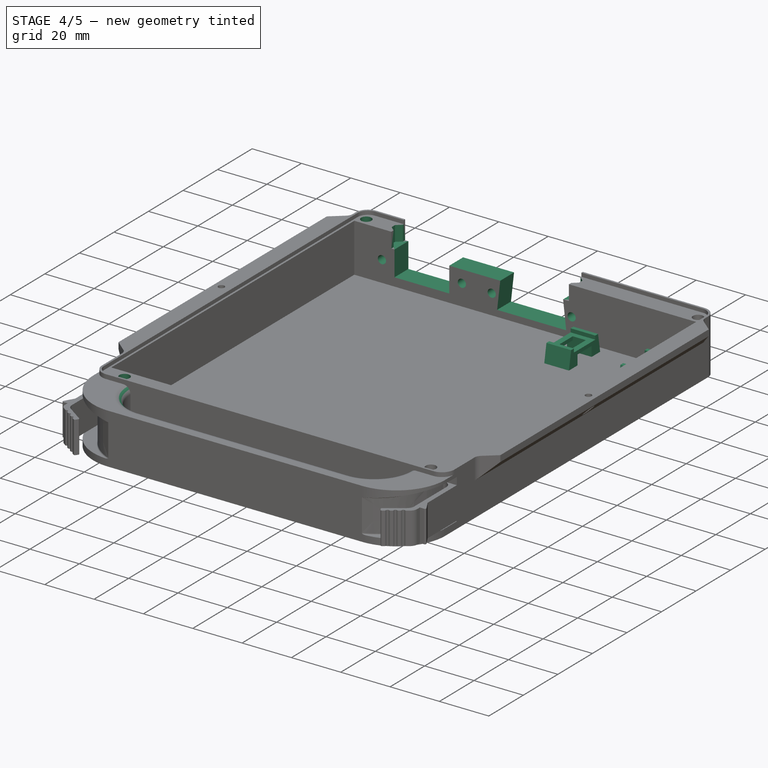
[diagram: stage 4 of 5 — iso view after this stage's code; geometry added in this stage tinted green]
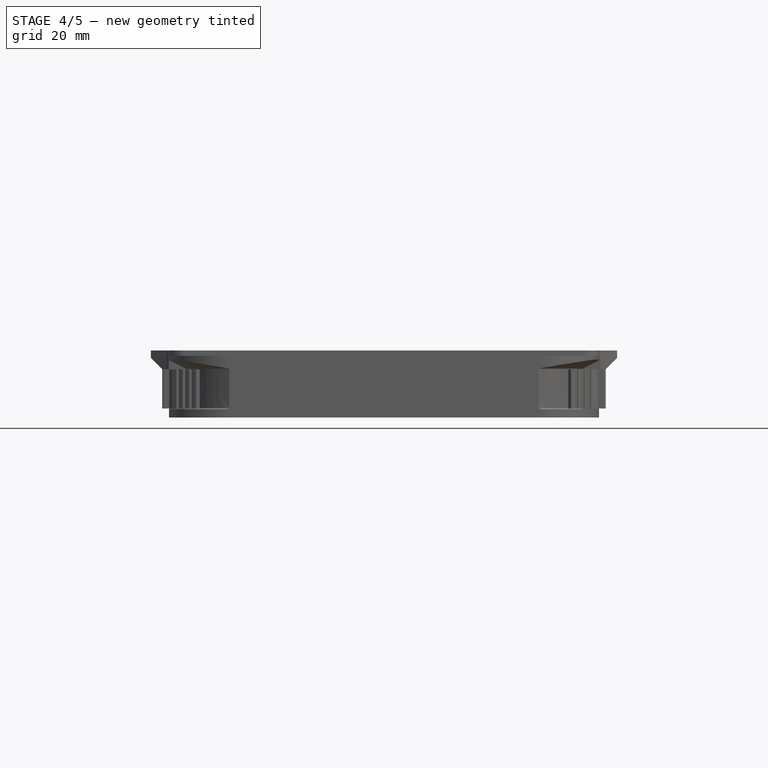
[diagram: stage 4 of 5 — front view after this stage's code; geometry added in this stage tinted green]
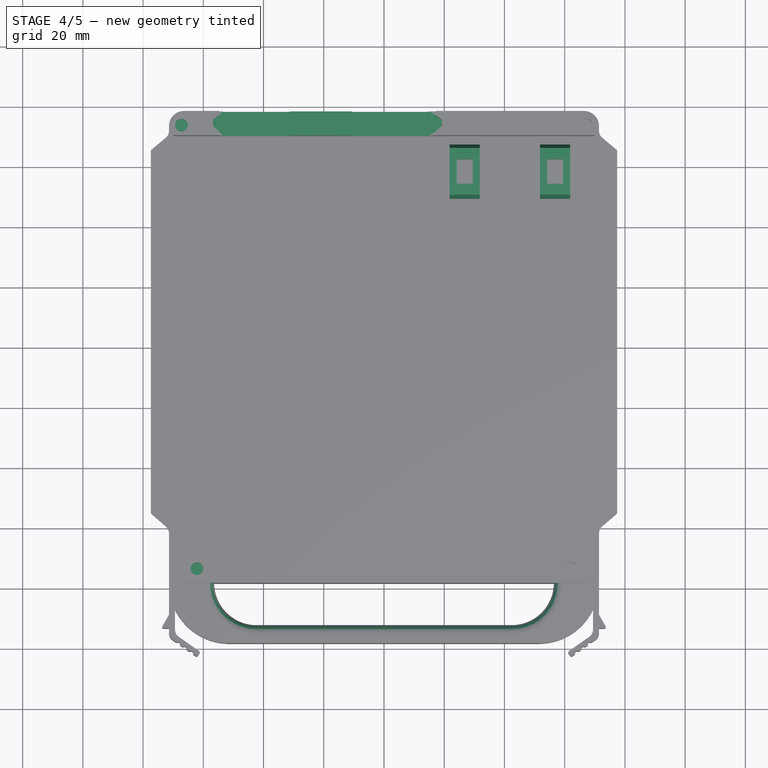
[diagram: stage 4 of 5 — top view after this stage's code; geometry added in this stage tinted green]
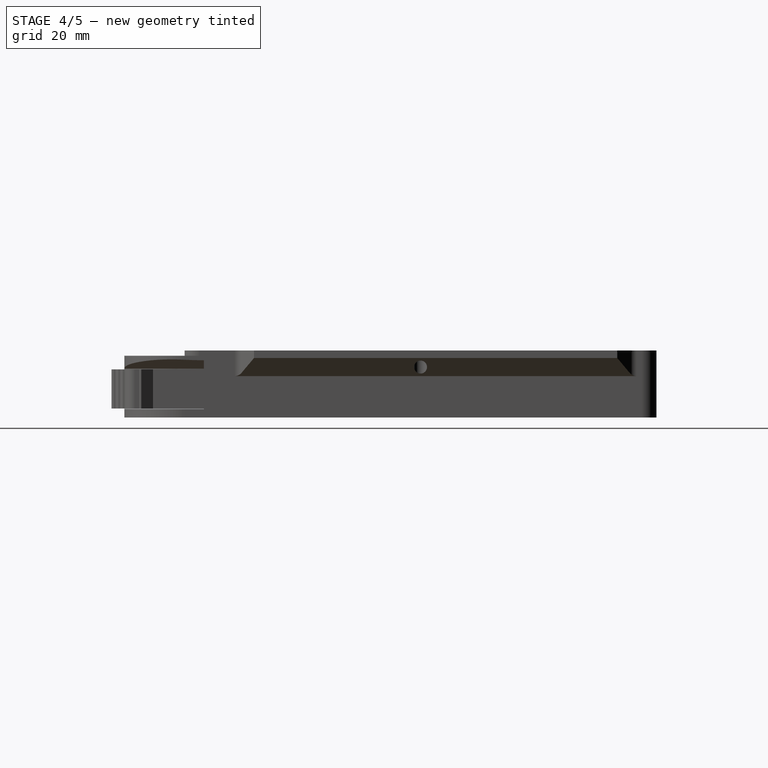
[diagram: stage 4 of 5 — right view after this stage's code; geometry added in this stage tinted green]
FEATURE [PartDesign::Mirrored] Mirrored003  label="insert holes side B"
  AddSubType = 0
  BaseFeature = -> Pad013
  CopyShape = false
  MirrorPlane = -> Sketch014 [V_Axis]
  NewSolid = false
  OriginalSubs = -> [Pad013]
  Originals = -> [Pad013]
  ParallelTransform = true
  SubTransform = true
  Suppress = false
  TreeRank = 55
  _Version = 3
FEATURE [Sketcher::SketchObject] Sketch015
  ArcFitTolerance = 1e-06
  AttachmentSupport = -> [Mirrored003]
  ExternalBSplineMaxDegree = 5
  ExternalBSplineTolerance = 0.0001
  ExternalGeometry = -> [Mirrored003]
  FullyConstrained = true
  InternalTolerance = 1e-06
  MakeInternals = false
  MapMode = 5
  Placement = pos=(0,78.35,0) rot=(0,0.707107,0.707107;3.14159rad)
  Support = -> [Mirrored003]
  TreeRank = 56
  sketch-geometry (16):
    g0: GeomPoint [constr] X=42.4 Y=9.5 Z=0
    g1: LineSegment StartX=31.3 StartY=14.6 StartZ=0 EndX=53.5 EndY=14.6 EndZ=0
    g2: LineSegment StartX=53.5 StartY=14.6 StartZ=0 EndX=53.5 EndY=4.4 EndZ=0
    g3: LineSegment StartX=53.5 StartY=4.4 StartZ=0 EndX=31.3 EndY=4.4 EndZ=0
    g4: LineSegment StartX=31.3 StartY=4.4 StartZ=0 EndX=31.3 EndY=14.6 EndZ=0
    g5: Circle CenterX=58.6 CenterY=9.5 CenterZ=0 NormalX=0 NormalY=0 NormalZ=1 AngleXU=0 Radius=1.65
    g6: Circle CenterX=26.2 CenterY=9.5 CenterZ=0 NormalX=0 NormalY=0 NormalZ=1 AngleXU=0 Radius=1.65
    g7: GeomPoint [constr] X=-2.1 Y=9.1 Z=0
    g8: LineSegment StartX=-16.1 StartY=3.6 StartZ=0 EndX=11.9 EndY=3.6 EndZ=0
    g9: LineSegment StartX=11.9 StartY=3.6 StartZ=0 EndX=10.65 EndY=14.6 EndZ=0
    g10: LineSegment StartX=10.65 StartY=14.6 StartZ=0 EndX=-14.85 EndY=14.6 EndZ=0
    g11: LineSegment StartX=-14.85 StartY=14.6 StartZ=0 EndX=-16.1 EndY=3.6 EndZ=0
    g12: GeomPoint [constr] X=-2.1 Y=14.6 Z=0
    g13: GeomPoint [constr] X=-2.1 Y=3.6 Z=0
    g14: Circle CenterX=-18.3 CenterY=9.1 CenterZ=0 NormalX=0 NormalY=0 NormalZ=1 AngleXU=0 Radius=1.65
    g15: Circle CenterX=14.1 CenterY=9.1 CenterZ=0 NormalX=0 NormalY=0 NormalZ=1 AngleXU=0 Radius=1.65
  constraints (39):
    c: DistanceX(g0,g-3) = 29
    c: DistanceY(g-3,g0) = 9.5
    c: Coincident(g1,g2)
    c: Coincident(g2,g3)
    c: Coincident(g3,g4)
    c: Coincident(g4,g1)
    c: Horizontal(g1)
    c: Horizontal(g3)
    c: Vertical(g2)
    c: Vertical(g4)
    c: DistanceX(g1,g1) = 22.2
    c: DistanceY(g4,g4) = 10.2
    c: Symmetric(g1,g2,g0)
    c: Diameter(g6) = 3.3
    c: Diameter(g5) = 3.3
    c: Horizontal(g5,g0)
    c: DistanceX(g6,g0) = 16.2
    c: Symmetric(g6,g5,g0)
    c: DistanceX(g7,g0) = 44.5
    c: DistanceY(g-3,g7) = 9.1
    c: Horizontal(g8)
    c: Coincident(g9,g8)
    c: Coincident(g10,g9)
    c: Horizontal(g10)
    c: Coincident(g11,g10)
    c: Coincident(g11,g8)
    c: DistanceX(g8,g8) = 28
    c: DistanceX(g10,g10) = 25.5
    c: DistanceY(g8,g10) = 11
    c: Symmetric(g8,g8,g13)
    c: Symmetric(g10,g9,g12)
    c: Vertical(g13,g12)
    c: Vertical(g12,g7)
    c: DistanceY(g8,g7) = 5.5
    c: Diameter(g14) = 3.3
    c: Diameter(g15) = 3.3
    c: DistanceX(g14,g7) = 16.2
    c: Horizontal(g14,g7)
    c: Symmetric(g14,g15,g7)
FEATURE [PartDesign::Pad] Pad014  label="port holes"
  AddSubType = 1
  AlongSketchNormal = false
  AutoTaperInnerAngle = true
  BaseFeature = -> Mirrored003
  CheckUpToFaceLimits = true
  ClaimChildren = false
  Direction = (0,1,-2e-16)
  Fit = 0
  FitJoin = 0
  InnerFit = 0
  InnerFitJoin = 0
  Length = 10
  Length2 = 100
  Linearize = true
  NewSolid = false
  Profile = -> Sketch015
  Reversed = true
  Suppress = false
  TaperInnerAngle = 0
  TaperInnerAngleRev = 0
  TreeRank = 57
  Type = 2
  _ProfileBasedVersion = 1
FEATURE [Sketcher::SketchObject] Sketch016
  ArcFitTolerance = 1e-06
  AttachmentSupport = -> [Pad014]
  ExternalBSplineMaxDegree = 5
  ExternalBSplineTolerance = 0.0001
  ExternalGeometry = -> [Pad014]
  FullyConstrained = false
  InternalTolerance = 1e-06
  MakeInternals = false
  MapMode = 5
  Placement = pos=(0,0,22.25) rot=(0,0,1;0rad)
  Support = -> [Pad014]
  TreeRank = 58
  expr: Constraints[22] = <<Params>>.length_con_bar
  expr: Constraints[27] = <<Params>>.width_wall_dock + <<Params>>.width_wall
  sketch-geometry (16):
    g0: LineSegment StartX=-54.8 StartY=78.35 StartZ=0 EndX=17.2 EndY=78.35 EndZ=0
    g1: LineSegment StartX=-54.8 StartY=70.35 StartZ=0 EndX=17.2 EndY=70.35 EndZ=0
    g2: LineSegment StartX=-54.8 StartY=78.35 StartZ=0 EndX=-54.8 EndY=77.0282 EndZ=0
    g3: LineSegment StartX=-54.8 StartY=70.35 StartZ=0 EndX=-54.8 EndY=71.6718 EndZ=0
    g4: LineSegment StartX=17.2 StartY=70.35 StartZ=0 EndX=17.2 EndY=71.6718 EndZ=0
    g5: LineSegment StartX=17.2 StartY=78.35 StartZ=0 EndX=17.2 EndY=77.0282 EndZ=0
    g6: LineSegment StartX=-54.8 StartY=77.0282 StartZ=0 EndX=-56.8 EndY=75.35 EndZ=0
    g7: LineSegment StartX=-56.8 StartY=75.35 StartZ=0 EndX=-56.8 EndY=73.35 EndZ=0
    g8: LineSegment StartX=-56.8 StartY=73.35 StartZ=0 EndX=-54.8 EndY=71.6718 EndZ=0
    g9: LineSegment StartX=17.2 StartY=77.0282 StartZ=0 EndX=19.2 EndY=75.35 EndZ=0
    g10: LineSegment StartX=19.2 StartY=75.35 StartZ=0 EndX=19.2 EndY=73.35 EndZ=0
    g11: LineSegment StartX=19.2 StartY=73.35 StartZ=0 EndX=17.2 EndY=71.6718 EndZ=0
    g12: LineSegment [constr] StartX=-38.0549 StartY=70.35 StartZ=0 EndX=-38.0549 EndY=78.35 EndZ=0
    g13: GeomPoint [constr] X=-38.0549 Y=74.35 Z=0
    g14: GeomPoint [constr] X=-56.8 Y=74.35 Z=0
    g15: GeomPoint [constr] X=19.2 Y=74.35 Z=0
  constraints (42):
    c: Horizontal(g0)
    c: Horizontal(g1)
    c: Coincident(g2,g0)
    c: Vertical(g2)
    c: Coincident(g3,g1)
    c: Vertical(g3)
    c: Coincident(g4,g1)
    c: Vertical(g4)
    c: Coincident(g5,g0)
    c: Vertical(g5)
    c: Coincident(g6,g2)
    c: Coincident(g7,g6)
    c: Vertical(g7)
    c: Coincident(g8,g7)
    c: Coincident(g8,g3)
    c: Coincident(g9,g5)
    c: Coincident(g10,g9)
    c: Vertical(g10)
    c: Coincident(g11,g10)
    c: Coincident(g11,g4)
    c: Vertical(g1,g0)
    c: Vertical(g0,g1)
    c: DistanceX(g0,g0) = 72
    c: DistanceY(g7,g7) = 2
    c: DistanceX(g6,g2) = 2
    c: Angle(g2,g6) = 2.26893
    c: Angle(g8,g3) = 2.26893
    c: DistanceY(g1,g0) = 8
    c: PointOnObject(g12,g1)
    c: PointOnObject(g12,g0)
    c: Vertical(g12)
    c: Symmetric(g12,g12,g13)
    c: Symmetric(g7,g6,g14)
    c: Horizontal(g14,g13)
    c: Angle(g4,g11) = 2.26893
    c: Angle(g9,g5) = 2.26893
    c: DistanceX(g0,g9) = 2
    c: DistanceY(g10,g10) = 2
    c: Symmetric(g10,g9,g15)
    c: Horizontal(g15,g13)
    c: Horizontal(g1,g-3)
    c: DistanceX(g-3,g1) = 15
FEATURE [PartDesign::Pad] Pad015  label="port bridge gap"
  AddSubType = 1
  AlongSketchNormal = false
  AutoTaperInnerAngle = true
  BaseFeature = -> Pad014
  CheckUpToFaceLimits = true
  ClaimChildren = false
  Direction = (0,0,1)
  Fit = 0
  FitJoin = 0
  InnerFit = 0
  InnerFitJoin = 0
  Length = 10
  Length2 = 100
  Linearize = true
  NewSolid = false
  Profile = -> Sketch016
  Reversed = true
  Suppress = false
  TaperInnerAngle = 0
  TaperInnerAngleRev = 0
  TreeRank = 59
  Type = 3
  UpToFace = -> Pad014 [Face63]
  _ProfileBasedVersion = 1
FEATURE [Sketcher::SketchObject] Sketch017
  ArcFitTolerance = 1e-06
  AttachmentSupport = -> [Pad015]
  ExternalBSplineMaxDegree = 5
  ExternalBSplineTolerance = 0.0001
  ExternalGeometry = -> [Pad015]
  FullyConstrained = true
  InternalTolerance = 1e-06
  MakeInternals = false
  MapMode = 5
  Placement = pos=(0,0,1) rot=(0,0,1;0rad)
  Support = -> [Pad015]
  TreeRank = 60
  sketch-geometry (18):
    g0: LineSegment StartX=51.8 StartY=66.35 StartZ=0 EndX=61.8 EndY=66.35 EndZ=0
    g1: LineSegment StartX=61.8 StartY=66.35 StartZ=0 EndX=61.8 EndY=50.75 EndZ=0
    g2: LineSegment StartX=61.8 StartY=50.75 StartZ=0 EndX=51.8 EndY=50.75 EndZ=0
    g3: LineSegment StartX=51.8 StartY=50.75 StartZ=0 EndX=51.8 EndY=66.35 EndZ=0
    g4: LineSegment StartX=21.8 StartY=66.35 StartZ=0 EndX=31.8 EndY=66.35 EndZ=0
    g5: LineSegment StartX=31.8 StartY=66.35 StartZ=0 EndX=31.8 EndY=50.75 EndZ=0
    g6: LineSegment StartX=31.8 StartY=50.75 StartZ=0 EndX=21.8 EndY=50.75 EndZ=0
    g7: LineSegment StartX=21.8 StartY=50.75 StartZ=0 EndX=21.8 EndY=66.35 EndZ=0
    g8: LineSegment StartX=24.15 StartY=62.65 StartZ=0 EndX=24.15 EndY=54.45 EndZ=0
    g9: LineSegment StartX=24.15 StartY=54.45 StartZ=0 EndX=29.45 EndY=54.45 EndZ=0
    g10: LineSegment StartX=29.45 StartY=54.45 StartZ=0 EndX=29.45 EndY=62.65 EndZ=0
    g11: LineSegment StartX=29.45 StartY=62.65 StartZ=0 EndX=24.15 EndY=62.65 EndZ=0
    g12: GeomPoint [constr] X=26.8 Y=58.55 Z=0
    g13: LineSegment StartX=54.15 StartY=62.65 StartZ=0 EndX=54.15 EndY=54.45 EndZ=0
    g14: LineSegment StartX=54.15 StartY=54.45 StartZ=0 EndX=59.45 EndY=54.45 EndZ=0
    g15: LineSegment StartX=59.45 StartY=54.45 StartZ=0 EndX=59.45 EndY=62.65 EndZ=0
    g16: LineSegment StartX=59.45 StartY=62.65 StartZ=0 EndX=54.15 EndY=62.65 EndZ=0
    g17: GeomPoint [constr] X=56.8 Y=58.55 Z=0
  constraints (48):
    c: Coincident(g0,g1)
    c: Coincident(g1,g2)
    c: Coincident(g2,g3)
    c: Coincident(g3,g0)
    c: Horizontal(g0)
    c: Horizontal(g2)
    c: Vertical(g1)
    c: Vertical(g3)
    c: Coincident(g4,g5)
    c: Coincident(g5,g6)
    c: Coincident(g6,g7)
    c: Coincident(g7,g4)
    c: Horizontal(g4)
    c: Horizontal(g6)
    c: Vertical(g5)
    c: Vertical(g7)
    c: DistanceX(g6,g6) = 10
    c: DistanceX(g2,g2) = 10
    c: DistanceY(g7,g7) = 15.6
    c: DistanceY(g3,g3) = 15.6
    c: Horizontal(g2,g5)
    c: DistanceX(g6,g2) = 30
    c: DistanceX(g0,g-3) = 8
    c: DistanceY(g0,g-3) = 4
    c: Coincident(g8,g9)
    c: Coincident(g9,g10)
    c: Coincident(g10,g11)
    c: Coincident(g11,g8)
    c: Horizontal(g9)
    c: Horizontal(g11)
    c: Vertical(g8)
    c: Vertical(g10)
    c: Symmetric(g9,g8,g12)
    c: Coincident(g13,g14)
    c: Coincident(g14,g15)
    c: Coincident(g15,g16)
    c: Coincident(g16,g13)
    c: Horizontal(g14)
    c: Horizontal(g16)
    c: Vertical(g13)
    c: Vertical(g15)
    c: Symmetric(g14,g13,g17)
    c: Symmetric(g4,g5,g12)
    c: Symmetric(g0,g1,g17)
    c: DistanceX(g11,g11) = 5.3
    c: DistanceX(g16,g16) = 5.3
    c: DistanceY(g10,g10) = 8.2
    c: DistanceY(g15,g15) = 8.2
FEATURE [PartDesign::Pad] Pad016  label="fuse holder base"
  AddSubType = 0
  AlongSketchNormal = false
  AutoTaperInnerAngle = true
  BaseFeature = -> Pad015
  CheckUpToFaceLimits = true
  ClaimChildren = false
  Direction = (0,0,1)
  Fit = 0
  FitJoin = 0
  InnerFit = 0
  InnerFitJoin = 0
  Length = 7
  Length2 = 100
  Linearize = true
  NewSolid = false
  Profile = -> Sketch017
  Suppress = false
  TaperInnerAngle = 0
  TaperInnerAngleRev = 0
  TreeRank = 61
  Type = 0
  _ProfileBasedVersion = 1
FEATURE [Sketcher::SketchObject] Sketch018
  ArcFitTolerance = 1e-06
  AttachmentSupport = -> [Pad016]
  ExternalBSplineMaxDegree = 5
  ExternalBSplineTolerance = 0.0001
  ExternalGeometry = -> [Pad016]
  FullyConstrained = true
  InternalTolerance = 1e-06
  MakeInternals = false
  MapMode = 5
  Placement = pos=(0,0,8) rot=(0,0,1;0rad)
  Support = -> [Pad016]
  TreeRank = 62
  sketch-geometry (8):
    g0: LineSegment StartX=21.8 StartY=64.75 StartZ=0 EndX=31.8 EndY=64.75 EndZ=0
    g1: LineSegment StartX=31.8 StartY=64.75 StartZ=0 EndX=31.8 EndY=52.35 EndZ=0
    g2: LineSegment StartX=31.8 StartY=52.35 StartZ=0 EndX=21.8 EndY=52.35 EndZ=0
    g3: LineSegment StartX=21.8 StartY=52.35 StartZ=0 EndX=21.8 EndY=64.75 EndZ=0
    g4: LineSegment StartX=51.8 StartY=64.75 StartZ=0 EndX=61.8 EndY=64.75 EndZ=0
    g5: LineSegment StartX=61.8 StartY=64.75 StartZ=0 EndX=61.8 EndY=52.35 EndZ=0
    g6: LineSegment StartX=61.8 StartY=52.35 StartZ=0 EndX=51.8 EndY=52.35 EndZ=0
    g7: LineSegment StartX=51.8 StartY=52.35 StartZ=0 EndX=51.8 EndY=64.75 EndZ=0
  constraints (24):
    c: Coincident(g0,g1)
    c: Coincident(g1,g2)
    c: Coincident(g2,g3)
    c: Coincident(g3,g0)
    c: Horizontal(g0)
    c: Horizontal(g2)
    c: Vertical(g1)
    c: Vertical(g3)
    c: Coincident(g4,g5)
    c: Coincident(g5,g6)
    c: Coincident(g6,g7)
    c: Coincident(g7,g4)
    c: Horizontal(g4)
    c: Horizontal(g6)
    c: Vertical(g5)
    c: Vertical(g7)
    c: Vertical(g5,g-6)
    c: Vertical(g4,g-5)
    c: Vertical(g0,g-3)
    c: Vertical(g1,g-4)
    c: DistanceY(g0,g-3) = 1.6
    c: DistanceY(g-4,g1) = 1.6
    c: DistanceY(g4,g-5) = 1.6
    c: DistanceY(g-6,g5) = 1.6
FEATURE [PartDesign::Pad] Pad017  label="fuse holder indent"
  AddSubType = 1
  AlongSketchNormal = false
  AutoTaperInnerAngle = true
  BaseFeature = -> Pad016
  CheckUpToFaceLimits = true
  ClaimChildren = false
  Direction = (0,0,1)
  Fit = 0
  FitJoin = 0
  InnerFit = 0
  InnerFitJoin = 0
  Length = 1.5
  Length2 = 100
  Linearize = true
  NewSolid = false
  Profile = -> Sketch018
  Reversed = true
  Suppress = false
  TaperInnerAngle = 0
  TaperInnerAngleRev = 0
  TreeRank = 63
  Type = 0
  _ProfileBasedVersion = 1
FEATURE [Sketcher::SketchObject] Sketch019
  ArcFitTolerance = 1e-06
  AttachmentSupport = -> [Pad017]
  ExternalBSplineMaxDegree = 5
  ExternalBSplineTolerance = 0.0001
  ExternalGeometry = -> [Pad017]
  FullyConstrained = true
  InternalTolerance = 1e-06
  MakeInternals = false
  MapMode = 5
  Placement = pos=(21.8,0,0) rot=(0.57735,-0.57735,-0.57735;2.0944rad)
  Support = -> [Pad017]
  TreeRank = 64
  sketch-geometry (4):
    g0: LineSegment StartX=-62.65 StartY=5 StartZ=0 EndX=-54.45 EndY=5 EndZ=0
    g1: LineSegment StartX=-54.45 StartY=5 StartZ=0 EndX=-54.45 EndY=1 EndZ=0
    g2: LineSegment StartX=-54.45 StartY=1 StartZ=0 EndX=-62.65 EndY=1 EndZ=0
    g3: LineSegment StartX=-62.65 StartY=1 StartZ=0 EndX=-62.65 EndY=5 EndZ=0
  constraints (12):
    c: Coincident(g0,g1)
    c: Coincident(g1,g2)
    c: Coincident(g2,g3)
    c: Coincident(g3,g0)
    c: Horizontal(g0)
    c: Horizontal(g2)
    c: Vertical(g1)
    c: Vertical(g3)
    c: Vertical(g0,g-3)
    c: Vertical(g0,g-4)
    c: Horizontal(g2,g-5)
    c: DistanceY(g1,g1) = 4
FEATURE [PartDesign::Pad] Pad018  label="fuse holder nut holder"
  AddSubType = 1
  AlongSketchNormal = false
  AutoTaperInnerAngle = true
  BaseFeature = -> Pad017
  CheckUpToFaceLimits = true
  ClaimChildren = false
  Direction = (-1,0,0)
  Fit = 0
  FitJoin = 0
  InnerFit = 0
  InnerFitJoin = 0
  Length = 10
  Length2 = 100
  Linearize = true
  NewSolid = false
  Profile = -> Sketch019
  Reversed = true
  Suppress = false
  TaperInnerAngle = 0
  TaperInnerAngleRev = 0
  TreeRank = 65
  Type = 3
  UpToFace = -> Pad017 [Face180]
  _ProfileBasedVersion = 1
FEATURE [PartDesign::Draft] Draft001  label="fuse holder side draft"
  AddSubType = 0
  Angle = 10
  Base = -> Pad018 [Face174,Face178,Face181,Face182]
  BaseFeature = -> Pad018
  NeutralPlane = -> Pad018 [Face224]
  NewSolid = false
  SupportTransform = false
  Suppress = false
  TreeRank = 66
FEATURE [PartDesign::Fillet] Fillet006  label="handle fillet A"
  AddSubType = 0
  Base = -> Draft001 [Edge166,Edge164,Edge163,Edge356,Edge357,Edge354]
  BaseFeature = -> Draft001
  NewSolid = false
  Radius = 3
  SupportTransform = false
  Suppress = false
  TreeRank = 67
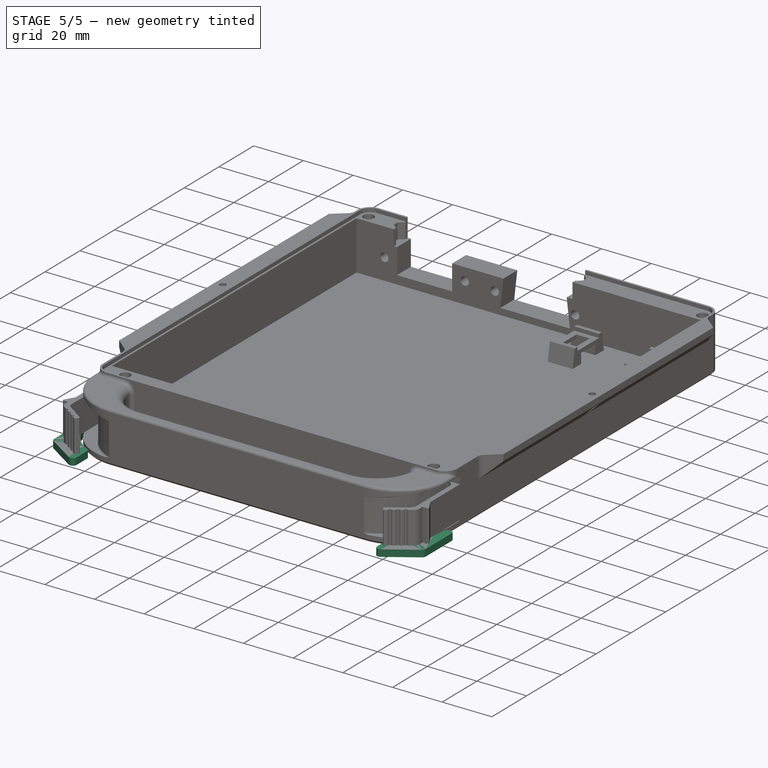
[diagram: stage 5 of 5 — iso view after this stage's code; geometry added in this stage tinted green]
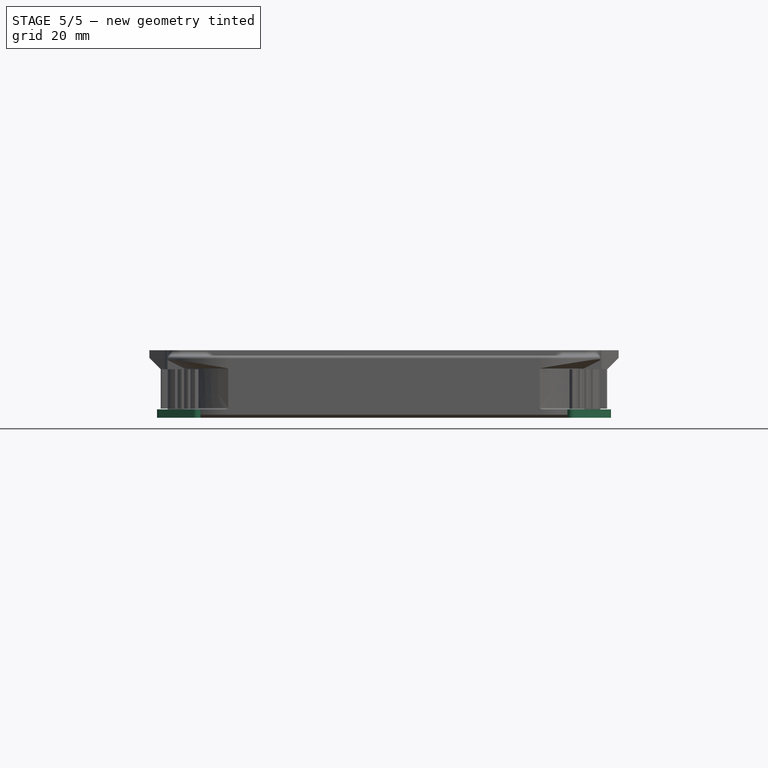
[diagram: stage 5 of 5 — front view after this stage's code; geometry added in this stage tinted green]
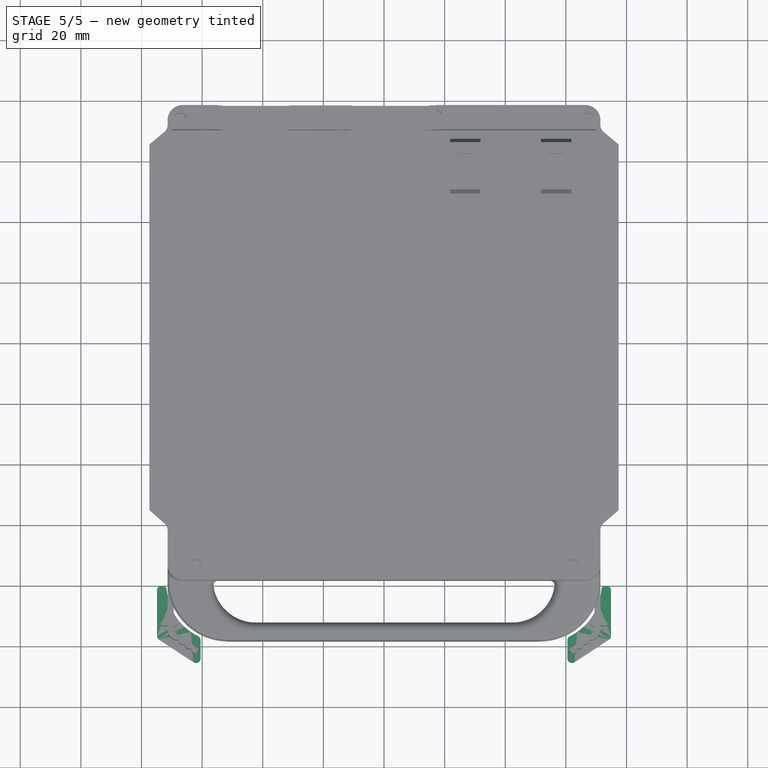
[diagram: stage 5 of 5 — top view after this stage's code; geometry added in this stage tinted green]
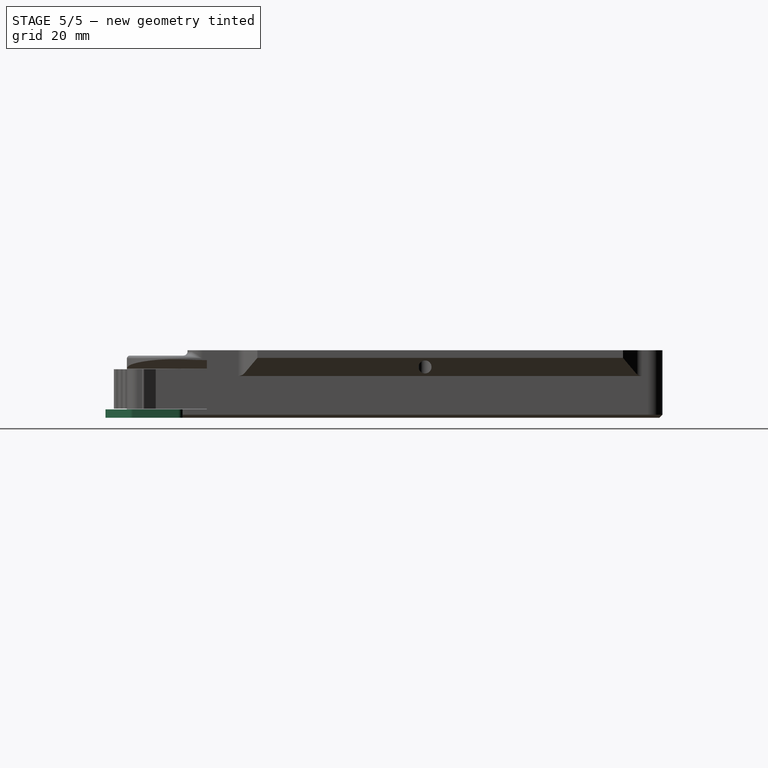
[diagram: stage 5 of 5 — right view after this stage's code; geometry added in this stage tinted green]
FEATURE [PartDesign::Fillet] Fillet007  label="handle fillet B"
  AddSubType = 0
  Base = -> Fillet006 [Edge20,Edge21,Edge22]
  BaseFeature = -> Fillet006
  NewSolid = false
  Radius = 1
  SupportTransform = false
  Suppress = false
  TreeRank = 68
FEATURE [PartDesign::Fillet] Fillet008  label="handle fillet C"
  AddSubType = 0
  Base = -> Fillet007 [Edge11,Edge12,Edge1,Edge3]
  BaseFeature = -> Fillet007
  NewSolid = false
  Radius = 1.4
  SupportTransform = false
  Suppress = false
  TreeRank = 69
FEATURE [PartDesign::Fillet] Fillet009  label="handle fillet D"
  AddSubType = 0
  Base = -> Fillet008 [Edge59]
  BaseFeature = -> Fillet008
  NewSolid = false
  Radius = 2
  SupportTransform = false
  Suppress = false
  TreeRank = 70
FEATURE [PartDesign::Chamfer] Chamfer  label="top chamfer"
  AddSubType = 0
  Angle = 45
  Base = -> Fillet009 [Edge144,Edge238,Edge239,Edge240,Edge241,Edge242,Edge145,Edge66,Edge135,Edge137,Edge138,Edge69]
  BaseFeature = -> Fillet009
  ChamferType = 0
  FlipDirection = false
  NewSolid = false
  Size = 1
  Size2 = 1
  SupportTransform = false
  Suppress = false
  TreeRank = 71
FEATURE [Part::SubShapeBinder] Import  label="Import(top chamfer)"
  BindCopyOnChange = 0
  BindMode = 0
  ClaimChildren = false
  Context = -> Body001 [Import.]
  EdgeTolerance = 1e-06
  FillStyle = 0
  Fuse = false
  MakeFace = false
  MergeEdges = true
  OffsetFill = false
  OffsetIntersection = false
  OffsetJoinType = 0
  OffsetOpenResult = false
  Outline = false
  PartialLoad = false
  Relative = true
  SplitEdges = false
  Support = -> [Body[Chamfer.]]
  TightBound = false
  TreeRank = 85
  _Version = 8
FEATURE [Sketcher::SketchObject] Sketch020
  ArcFitTolerance = 1e-06
  AttachmentOffset = pos=(0,0,0.25) rot=(0,0,1;0rad)
  AttachmentSupport = -> [Chamfer]
  ExternalBSplineMaxDegree = 5
  ExternalBSplineTolerance = 0.0001
  ExternalGeometry = -> [Import]
  FullyConstrained = false
  InternalTolerance = 1e-06
  MakeInternals = false
  MapMode = 5
  Placement = pos=(0,0,2.75) rot=(1,0,0;3.14159rad)
  Support = -> [Chamfer]
  TreeRank = 84
  expr: AttachmentOffset.Base.z = <<Params>>.layer_height
  sketch-geometry (5):
    g0: ArcOfCircle CenterX=-53.22 CenterY=79.95 CenterZ=0 NormalX=0 NormalY=0 NormalZ=1 AngleXU=0 Radius=18.5 StartAngle=1.97589 EndAngle=3.14159
    g1: LineSegment StartX=-71.72 StartY=79.95 StartZ=0 EndX=-74.8722 EndY=79.95 EndZ=0
    g2: LineSegment StartX=-74.8722 StartY=79.95 StartZ=0 EndX=-74.8722 EndY=97.2558 EndZ=0
    g3: LineSegment StartX=-74.8722 StartY=97.2558 StartZ=0 EndX=-60.5109 EndY=106.701 EndZ=0
    g4: LineSegment StartX=-60.5109 StartY=106.701 StartZ=0 EndX=-60.5109 EndY=96.9527 EndZ=0
  constraints (12):
    c: Horizontal(g0,g0)
    c: Diameter(g0) = 37
    c: Coincident(g1,g0)
    c: Horizontal(g1)
    c: Coincident(g2,g1)
    c: Vertical(g2)
    c: Coincident(g3,g2)
    c: Coincident(g4,g3)
    c: Coincident(g4,g0)
    c: Vertical(g4)
    c: DistanceY(g-3,g0) = 8
    c: DistanceX(g0,g-3) = 0.32
FEATURE [PartDesign::SubShapeBinder] Import001  label="Import001(top chamfer)"
  BindCopyOnChange = 0
  BindMode = 0
  ClaimChildren = false
  Context = -> Body001 [Import001.]
  EdgeTolerance = 1e-06
  FillStyle = 0
  Fuse = false
  MakeFace = false
  MergeEdges = true
  OffsetFill = false
  OffsetIntersection = false
  OffsetJoinType = 0
  OffsetOpenResult = false
  Outline = false
  PartialLoad = false
  Relative = true
  SplitEdges = false
  Support = -> [Body[Chamfer.Face4]]
  TightBound = false
  TreeRank = 87
  _Version = 8
FEATURE [PartDesign::Pad] Pad019
  AddSubType = 0
  AlongSketchNormal = false
  AutoTaperInnerAngle = true
  CheckUpToFaceLimits = true
  ClaimChildren = false
  Direction = (0,0,-1)
  Fit = 0
  FitJoin = 0
  InnerFit = 0
  InnerFitJoin = 0
  Length = 10
  Length2 = 100
  Linearize = true
  NewSolid = false
  Profile = -> Sketch020
  Suppress = false
  TaperInnerAngle = 0
  TaperInnerAngleRev = 0
  TreeRank = 86
  Type = 3
  UpToFace = -> Import001
  _ProfileBasedVersion = 1
FEATURE [PartDesign::Fillet] Fillet010
  AddSubType = 0
  Base = -> Pad019 [Edge773,Edge763,Edge774,Edge768,Edge761]
  BaseFeature = -> Pad019
  NewSolid = false
  Radius = 1.5
  SupportTransform = false
  Suppress = false
  TreeRank = 88
FEATURE [PartDesign::Mirrored] Mirrored004
  AddSubType = 0
  BaseFeature = -> Fillet010
  CopyShape = false
  MirrorPlane = -> YZ_Plane001
  NewSolid = false
  OriginalSubs = -> [Pad019,Fillet010]
  Originals = -> [Pad019,Fillet010]
  ParallelTransform = true
  SubTransform = true
  Suppress = false
  TreeRank = 89
  _Version = 3
FEATURE [PartDesign::Body] Body001  label="print support"
  AutoGroupSolids = false
  ClaimAllChildren = false
  ExportMode = 0
  Group = -> [Sketch020,Import,Pad019,Fillet010,Import001,Mirrored004]
  Origin = -> Origin001
  Tip = -> Mirrored004
  TreeRank = 83
  _ExportChildren = -> [Import,Pad019,Fillet010,Import001,Mirrored004]
  _GroupVersion = 1
FEATURE [PartDesign::Fillet] Fillet011  label="port beam roundovers"
  AddSubType = 0
  Base = -> Chamfer [Edge575,Edge576,Edge569,Edge390,Edge579,Edge578,Edge400,Edge577]
  BaseFeature = -> Chamfer
  NewSolid = false
  Radius = 0.5
  SupportTransform = false
  Suppress = false
  TreeRank = 90
FEATURE [PartDesign::Body] Body  label="Top shell"
  AutoGroupSolids = false
  ClaimAllChildren = false
  ExportMode = 0
  Group = -> [Sketch,Pad,Sketch001,Pad001,Sketch002,Pad002,Sketch003,Pad003,Fillet,Sketch004,Pad004,Sketch005,Pipe,Sketch006,Pad005,Fillet001,Fillet002,Fillet003,Mirrored,Fillet004,Sketch007,Pad006,Sketch008,Pad007,Sketch009,Pad008,Mirrored001,Sketch010,Pad009,Draft,Fillet005,Sketch011,Pad010,Sketch012,Pad011,Sketch013,Pad012,Mirrored002,Sketch014,Pad013,Mirrored003,Sketch015,Pad014,Sketch016,Pad015,Sketch017,+12 more]
  Origin = -> Origin
  Tip = -> Fillet011
  TreeRank = 11
  _ExportChildren = -> [Pad,Pad001,Pad002,Pad003,Fillet,Pad004,Pipe,Pad005,Fillet001,Fillet002,Fillet003,Mirrored,Fillet004,Pad006,Pad007,Pad008,Mirrored001,Pad009,Draft,Fillet005,Pad010,Pad011,Pad012,Mirrored002,Pad013,Mirrored003,Pad014,Pad015,Pad016,Pad017,Pad018,Draft001,Fillet006,Fillet007,Fillet008,Fillet009,Chamfer,Fillet011]
  _GroupVersion = 1
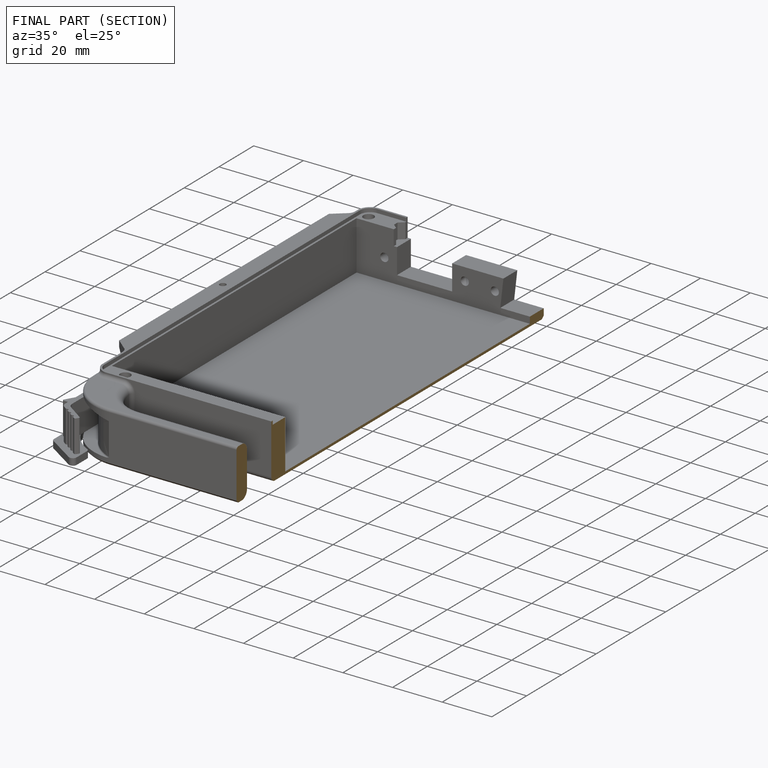
[diagram: finished part — half-section view (interior)]
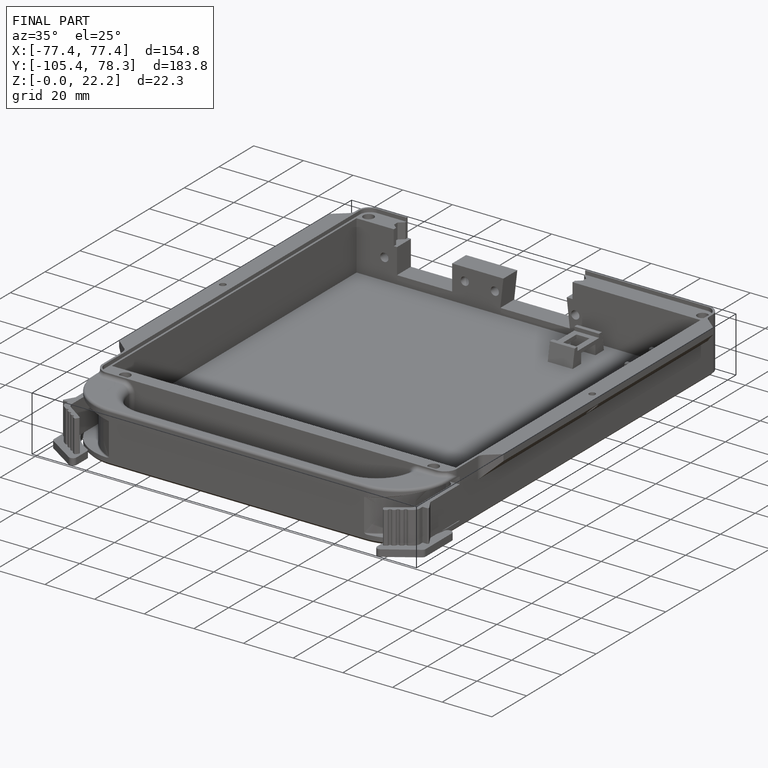
[diagram: finished part — iso view with bounding-box wireframe]
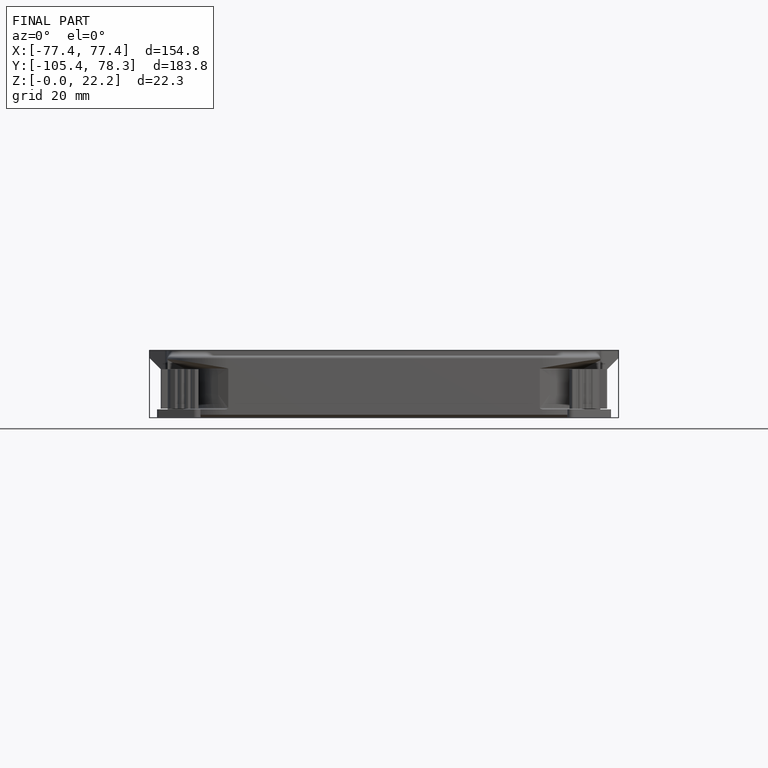
[diagram: finished part — front view with bounding-box wireframe]
